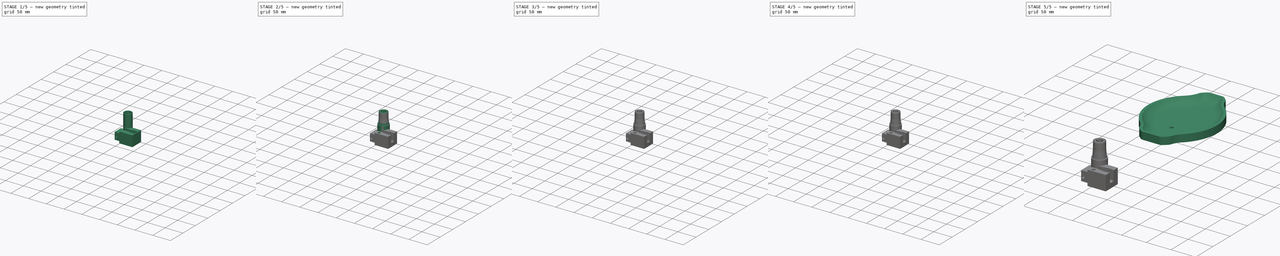
[diagram: build sequence overview — one tinted view per stage of 5, left to right]
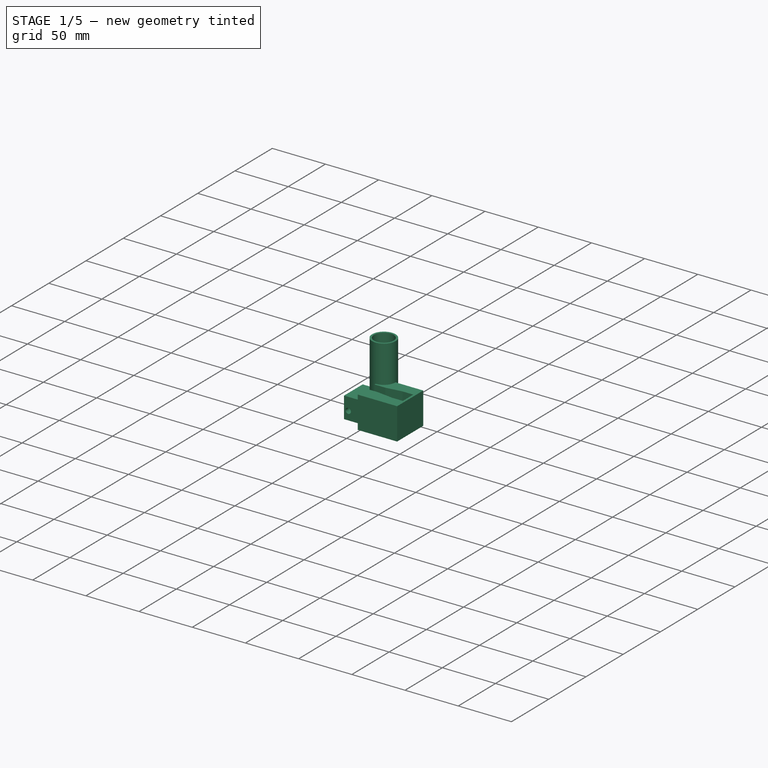
[diagram: stage 1 of 5 — iso view after this stage's code; geometry added in this stage tinted green]
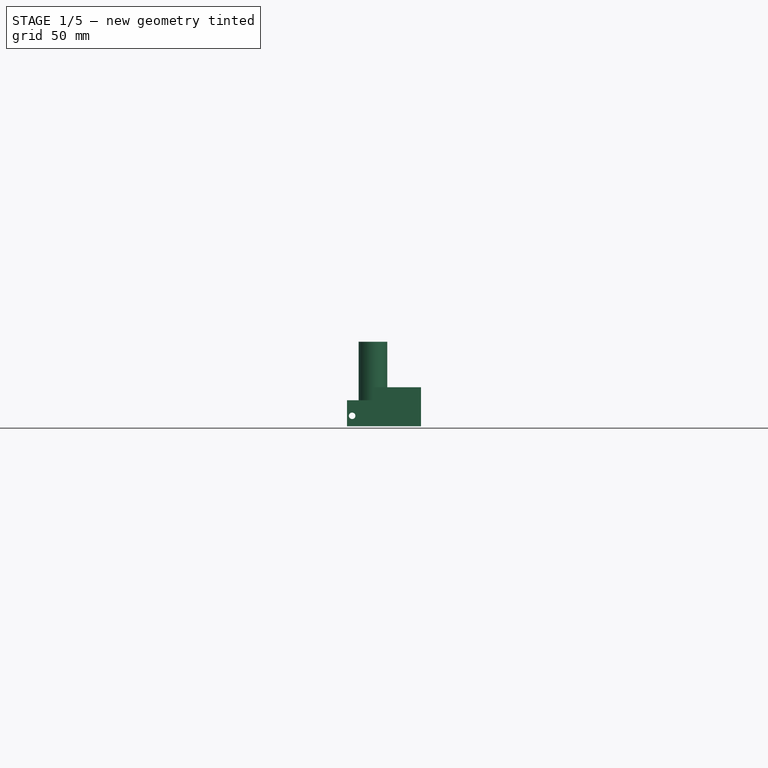
[diagram: stage 1 of 5 — front view after this stage's code; geometry added in this stage tinted green]
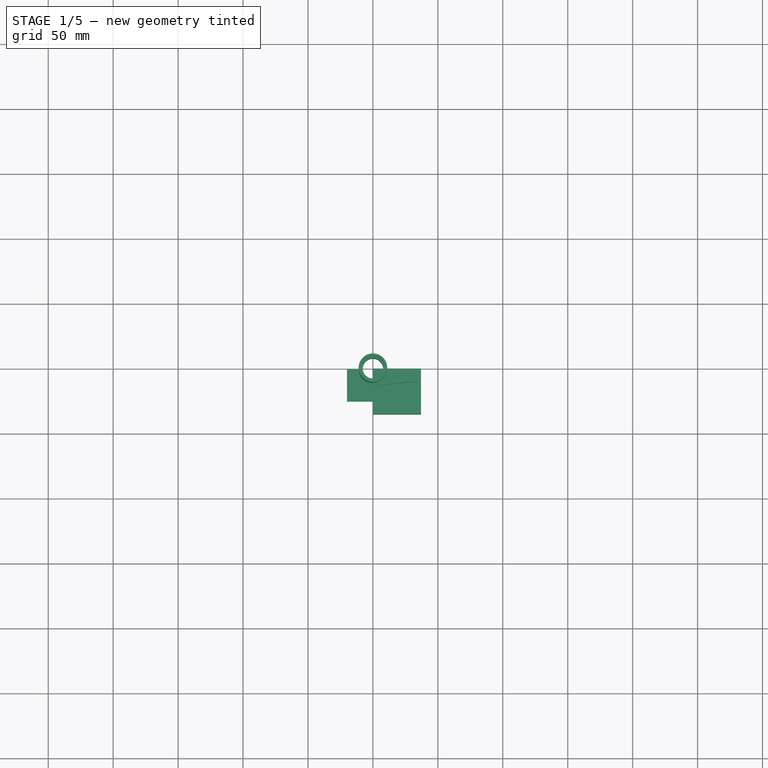
[diagram: stage 1 of 5 — top view after this stage's code; geometry added in this stage tinted green]
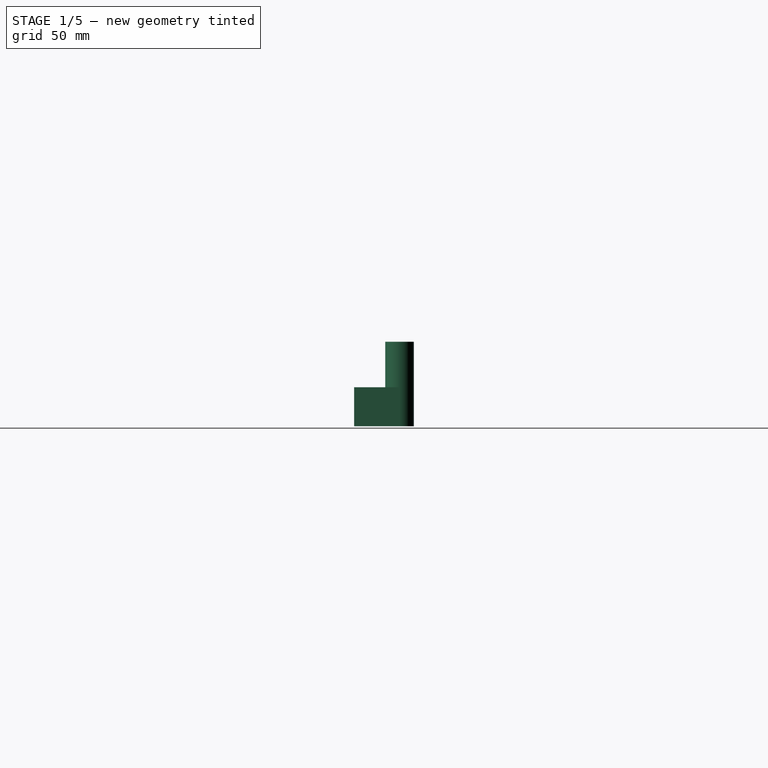
[diagram: stage 1 of 5 — right view after this stage's code; geometry added in this stage tinted green]
FCSTD DOCUMENT  (FreeCAD 0.20R29177 +426 (Git))
Label: Accessoires_maquette3D
License: All rights reserved
LicenseURL: http://en.wikipedia.org/wiki/All_rights_reserved
objects: Sketcher::SketchObject×64, PartDesign::Pocket×38, PartDesign::Pad×26, PartDesign::Body×18, PartDesign::Chamfer×14, PartDesign::Fillet×9, Part::Cut×1
note: 257 computed .brp shape members not serialized (recipe doc carries the construction recipe); baked Part::Feature solids carry a one-line shape summary decoded from their .brp

FEATURE [Sketcher::SketchObject] Sketch
  FullyConstrained = true
  MapMode = 5
  Support = -> [XY_Plane]
  sketch-geometry (1):
    g0: Circle CenterX=0 CenterY=0 CenterZ=0 NormalX=0 NormalY=0 NormalZ=1 AngleXU=0 Radius=9.75
  constraints (2):
    c: Coincident(g0,g-1)
    c: Diameter(g0) = 19.5
FEATURE [PartDesign::Pad] Pad
  Direction = (0,0,1)
  Length = 65
  Length2 = 10
  Profile = -> Sketch
  ReferenceAxis = -> Sketch [N_Axis]
  Type = 0
FEATURE [Sketcher::SketchObject] Sketch001
  FullyConstrained = true
  MapMode = 5
  Placement = pos=(0,0,0) rot=(1,0,0;3.14159rad)
  Support = -> [Pad]
  sketch-geometry (1):
    g0: Circle CenterX=0 CenterY=0 CenterZ=0 NormalX=0 NormalY=0 NormalZ=1 AngleXU=0 Radius=9.25
  constraints (2):
    c: Coincident(g0,g-1)
    c: Diameter(g0) = 18.5
FEATURE [PartDesign::Pocket] Pocket
  BaseFeature = -> Pad
  Direction = (0,0,1)
  Length = 18
  Length2 = 5
  Profile = -> Sketch001
  ReferenceAxis = -> Sketch001 [N_Axis]
  Type = 0
FEATURE [Sketcher::SketchObject] Sketch012
  FullyConstrained = true
  MapMode = 5
  Placement = pos=(0,0,65) rot=(0,0,1;0rad)
  Support = -> [Pocket]
  sketch-geometry (1):
    g0: Circle CenterX=0 CenterY=0 CenterZ=0 NormalX=0 NormalY=0 NormalZ=1 AngleXU=0 Radius=11
  constraints (2):
    c: Coincident(g0,g-1)
    c: Diameter(g0) = 22
FEATURE [PartDesign::Pad] Pad005
  BaseFeature = -> Pocket
  Direction = (0,0,1)
  Length = 30
  Length2 = 10
  Profile = -> Sketch012
  ReferenceAxis = -> Sketch012 [N_Axis]
  Reversed = true
  Type = 0
FEATURE [Sketcher::SketchObject] Sketch013
  FullyConstrained = true
  MapMode = 5
  Placement = pos=(0,0,65) rot=(0,0,1;0rad)
  Support = -> [Pad005]
  sketch-geometry (1):
    g0: Circle CenterX=0 CenterY=0 CenterZ=0 NormalX=0 NormalY=0 NormalZ=1 AngleXU=0 Radius=9.25
  constraints (2):
    c: Coincident(g0,g-1)
    c: Diameter(g0) = 18.5
FEATURE [PartDesign::Pocket] Pocket007
  BaseFeature = -> Pad005
  Direction = (0,0,-1)
  Length = 50
  Length2 = 5
  Profile = -> Sketch013
  ReferenceAxis = -> Sketch013 [N_Axis]
  Type = 0
FEATURE [PartDesign::Fillet] Fillet
  Base = -> Pocket007 [Edge5]
  BaseFeature = -> Pocket007
  Radius = 0.8
  SupportTransform = false
  UseAllEdges = false
FEATURE [Sketcher::SketchObject] Sketch014
  FullyConstrained = false
  MapMode = 5
  Placement = pos=(0,0,0) rot=(1,0,0;3.14159rad)
  Support = -> [Fillet]
  sketch-geometry (4):
    g0: LineSegment StartX=-19.9154 StartY=25 StartZ=0 EndX=20.0846 EndY=25 EndZ=0
    g1: LineSegment StartX=20.0846 StartY=25 StartZ=0 EndX=20.0846 EndY=0 EndZ=0
    g2: LineSegment StartX=20.0846 StartY=0 StartZ=0 EndX=-19.9154 EndY=0 EndZ=0
    g3: LineSegment StartX=-19.9154 StartY=0 StartZ=0 EndX=-19.9154 EndY=25 EndZ=0
  constraints (11):
    c: Coincident(g0,g1)
    c: Coincident(g1,g2)
    c: Coincident(g2,g3)
    c: Coincident(g3,g0)
    c: Horizontal(g0)
    c: Horizontal(g2)
    c: Vertical(g1)
    c: Vertical(g3)
    c: DistanceX(g0,g0) = 40
    c: DistanceY(g1,g1) = 25
    c: PointOnObject(g2,g-1)
FEATURE [PartDesign::Pad] Pad006
  BaseFeature = -> Fillet
  Direction = (0,0,-1)
  Length = 20
  Length2 = 10
  Profile = -> Sketch014
  ReferenceAxis = -> Sketch014 [N_Axis]
  Reversed = true
  Type = 0
FEATURE [Sketcher::SketchObject] Sketch015
  FullyConstrained = false
  MapMode = 5
  Placement = pos=(0,0,0) rot=(1,0,0;3.14159rad)
  Support = -> [Pad006]
  sketch-geometry (4):
    g0: LineSegment StartX=-11.75 StartY=12.7225 StartZ=0 EndX=11.75 EndY=12.7225 EndZ=0
    g1: LineSegment StartX=11.75 StartY=12.7225 StartZ=0 EndX=11.75 EndY=9.72255 EndZ=0
    g2: LineSegment StartX=11.75 StartY=9.72255 StartZ=0 EndX=-11.75 EndY=9.72255 EndZ=0
    g3: LineSegment StartX=-11.75 StartY=9.72255 StartZ=0 EndX=-11.75 EndY=12.7225 EndZ=0
  constraints (10):
    c: Coincident(g0,g1)
    c: Coincident(g1,g2)
    c: Coincident(g2,g3)
    c: Coincident(g3,g0)
    c: Horizontal(g2)
    c: Vertical(g1)
    c: Vertical(g3)
    c: DistanceX(g0,g0) = 23.5
    c: Symmetric(g0,g0,g-2)
    c: DistanceY(g1,g1) = 3
FEATURE [PartDesign::Pocket] Pocket008
  BaseFeature = -> Pad006
  Direction = (0,0,1)
  Length = 15
  Length2 = 5
  Profile = -> Sketch015
  ReferenceAxis = -> Sketch015 [N_Axis]
  Type = 0
FEATURE [Sketcher::SketchObject] Sketch016
  FullyConstrained = false
  MapMode = 5
  Placement = pos=(0,0,0) rot=(1,0,0;3.14159rad)
  Support = -> [Pocket008]
  sketch-geometry (7):
    g0: ArcOfCircle CenterX=0 CenterY=0 CenterZ=0 NormalX=0 NormalY=0 NormalZ=1 AngleXU=0 Radius=9.74232 StartAngle=0 EndAngle=3.15202
    g1: LineSegment StartX=-11.7418 StartY=9.74232 StartZ=0 EndX=-11.7418 EndY=0 EndZ=0
    g2: LineSegment StartX=-11.7418 StartY=0 StartZ=0 EndX=-9.74179 EndY=-0.101547 EndZ=0
    g3: LineSegment StartX=-11.7418 StartY=9.74232 StartZ=0 EndX=7.05564e-08 EndY=9.74232 EndZ=0
    g4: LineSegment StartX=11.7423 StartY=9.74232 StartZ=0 EndX=11.7423 EndY=0 EndZ=0
    g5: LineSegment StartX=11.7423 StartY=0 StartZ=0 EndX=9.74232 EndY=0 EndZ=0
    g6: LineSegment StartX=11.7423 StartY=9.74232 StartZ=0 EndX=7.05564e-08 EndY=9.74232 EndZ=0
  constraints (19):
    c: Coincident(g0,g-1)
    c: PointOnObject(g0,g-1)
    c: PointOnObject(g1,g-1)
    c: Vertical(g1)
    c: Coincident(g2,g1)
    c: Coincident(g2,g0)
    c: Coincident(g3,g1)
    c: PointOnObject(g3,g0)
    c: Horizontal(g3)
    c: Tangent(g3,g0)
    c: PointOnObject(g4,g-1)
    c: Vertical(g4)
    c: Coincident(g5,g4)
    c: Coincident(g5,g0)
    c: Coincident(g6,g4)
    c: Coincident(g6,g3)
    c: Horizontal(g6)
    c: DistanceX(g2,g2) = 2
    c: DistanceX(g5,g5) = 2
FEATURE [PartDesign::Pocket] Pocket009
  BaseFeature = -> Pocket008
  Direction = (0,0,1)
  Length = 15
  Length2 = 5
  Profile = -> Sketch016
  ReferenceAxis = -> Sketch016 [N_Axis]
  Type = 0
FEATURE [Sketcher::SketchObject] Sketch017
  FullyConstrained = true
  MapMode = 5
  Placement = pos=(0,0,0) rot=(1,0,0;3.14159rad)
  Support = -> [Pocket009]
  sketch-geometry (1):
    g0: Circle CenterX=0 CenterY=0 CenterZ=0 NormalX=0 NormalY=0 NormalZ=1 AngleXU=0 Radius=9.25
  constraints (2):
    c: Coincident(g0,g-1)
    c: Diameter(g0) = 18.5
FEATURE [PartDesign::Pocket] Pocket010
  BaseFeature = -> Pocket009
  Direction = (0,0,1)
  Length = 20
  Length2 = 5
  Profile = -> Sketch017
  ReferenceAxis = -> Sketch017 [N_Axis]
  Type = 0
FEATURE [PartDesign::Body] Body004  label="Oxygen_Mixer"
  Group = -> [Sketch018,Pad007,Sketch019,Pocket011,Sketch020,Pocket012,Sketch022,Pad008,Sketch029,Sketch066,Pad023,Pocket039,Sketch067,Pocket040,Sketch069,Sketch071,Pocket043,Sketch072,Pad024,Pocket044,Sketch073,Pocket045,Chamfer020,Fillet008]
  Origin = -> Origin004
  Placement = pos=(101,200,0) rot=(0,0,1;0rad)
  Tip = -> Fillet008
FEATURE [Sketcher::SketchObject] Sketch074
  FullyConstrained = true
  MapMode = 5
  Support = -> [XY_Plane017]
  sketch-geometry (4):
    g0: LineSegment StartX=0 StartY=0 StartZ=0 EndX=35 EndY=0 EndZ=0
    g1: LineSegment StartX=35 StartY=0 StartZ=0 EndX=35 EndY=-35 EndZ=0
    g2: LineSegment StartX=35 StartY=-35 StartZ=0 EndX=0 EndY=-35 EndZ=0
    g3: LineSegment StartX=0 StartY=-35 StartZ=0 EndX=0 EndY=0 EndZ=0
  constraints (11):
    c: Coincident(g0,g1)
    c: Coincident(g1,g2)
    c: Coincident(g2,g3)
    c: Coincident(g3,g0)
    c: Horizontal(g0)
    c: Horizontal(g2)
    c: Vertical(g1)
    c: Vertical(g3)
    c: Coincident(g0,g-1)
    c: DistanceX(g0,g0) = 35
    c: DistanceY(g3,g3) = 35
FEATURE [PartDesign::Pad] Pad025
  Direction = (0,0,1)
  Length = 30
  Length2 = 10
  Profile = -> Sketch074
  ReferenceAxis = -> Sketch074 [N_Axis]
  Type = 0
FEATURE [Sketcher::SketchObject] Sketch075
  FullyConstrained = true
  MapMode = 5
  Placement = pos=(0,0,0) rot=(0.57735,-0.57735,-0.57735;2.0944rad)
  Support = -> [Pad025]
  sketch-geometry (1):
    g0: Circle CenterX=17.5 CenterY=15 CenterZ=0 NormalX=0 NormalY=0 NormalZ=1 AngleXU=0 Radius=5
  constraints (3):
    c: DistanceX(g-1,g0) = 17.5
    c: Diameter(g0) = 10
    c: DistanceY(g-1,g0) = 15
FEATURE [PartDesign::Pocket] Pocket046
  BaseFeature = -> Pad025
  Direction = (1,0,0)
  Length = 10
  Length2 = 5
  Profile = -> Sketch075
  ReferenceAxis = -> Sketch075 [N_Axis]
  Type = 0
FEATURE [Sketcher::SketchObject] Sketch076
  FullyConstrained = true
  MapMode = 5
  Placement = pos=(0,0,30) rot=(0,0,1;0rad)
  Support = -> [Pocket046]
  sketch-geometry (6):
    g0: LineSegment StartX=25 StartY=-10.5 StartZ=0 EndX=35 EndY=-10.5 EndZ=0
    g1: LineSegment StartX=35 StartY=-10.5 StartZ=0 EndX=35 EndY=-24.5 EndZ=0
    g2: LineSegment StartX=35 StartY=-24.5 StartZ=0 EndX=25 EndY=-24.5 EndZ=0
    g3: LineSegment StartX=10 StartY=-12.5 StartZ=0 EndX=25 EndY=-10.5 EndZ=0
    g4: LineSegment StartX=10 StartY=-22.5 StartZ=0 EndX=25 EndY=-24.5 EndZ=0
    g5: LineSegment StartX=10 StartY=-12.5 StartZ=0 EndX=10 EndY=-22.5 EndZ=0
  constraints (18):
    c: Coincident(g0,g1)
    c: Coincident(g1,g2)
    c: Horizontal(g0)
    c: Horizontal(g2)
    c: Vertical(g1)
    c: DistanceY(g2,g0) = 14
    c: DistanceX(g0,g0) = 10
    c: DistanceY(g0,g-1) = 10.5
    c: Coincident(g3,g0)
    c: Coincident(g4,g2)
    c: DistanceX(g-1,g3) = 10
    c: DistanceX(g-1,g4) = 10
    c: DistanceY(g3,g-1) = 12.5
    c: DistanceY(g4,g-1) = 22.5
    c: Coincident(g5,g3)
    c: Coincident(g5,g4)
    c: DistanceX(g3,g3) = 15
    c: DistanceX(g4,g4) = 15
FEATURE [PartDesign::Pocket] Pocket047
  BaseFeature = -> Pocket046
  Direction = (0,0,-1)
  Length = 20
  Length2 = 5
  Profile = -> Sketch076
  ReferenceAxis = -> Sketch076 [N_Axis]
  Type = 0
FEATURE [Sketcher::SketchObject] Sketch077
  FullyConstrained = false
  MapMode = 5
  Placement = pos=(10,0,0) rot=(0.57735,0.57735,0.57735;2.0944rad)
  Support = -> [Pocket047]
  sketch-geometry (4):
    g0: LineSegment StartX=-22.5 StartY=30.0071 StartZ=0 EndX=-12.5 EndY=30.0071 EndZ=0
    g1: LineSegment StartX=-12.5 StartY=30.0071 StartZ=0 EndX=-12.5 EndY=14.9689 EndZ=0
    g2: LineSegment StartX=-12.5 StartY=14.9689 StartZ=0 EndX=-22.5 EndY=14.9689 EndZ=0
    g3: LineSegment StartX=-22.5 StartY=14.9689 StartZ=0 EndX=-22.5 EndY=30.0071 EndZ=0
  constraints (10):
    c: Coincident(g0,g1)
    c: Coincident(g1,g2)
    c: Coincident(g2,g3)
    c: Coincident(g3,g0)
    c: Horizontal(g0)
    c: Horizontal(g2)
    c: Vertical(g1)
    c: Vertical(g3)
    c: DistanceX(g0,g0) = 10
    c: DistanceX(g0,g-1) = 12.5
FEATURE [PartDesign::Pocket] Pocket048
  BaseFeature = -> Pocket047
  Direction = (-1,0,0)
  Length = 10
  Length2 = 5
  Profile = -> Sketch077
  ReferenceAxis = -> Sketch077 [N_Axis]
  Type = 0
FEATURE [Sketcher::SketchObject] Sketch078
  FullyConstrained = true
  MapMode = 5
  Placement = pos=(35,0,0) rot=(0.57735,0.57735,0.57735;2.0944rad)
  Support = -> [Pocket048]
  sketch-geometry (4):
    g0: LineSegment StartX=0 StartY=0 StartZ=0 EndX=-35 EndY=0 EndZ=0
    g1: LineSegment StartX=-35 StartY=0 StartZ=0 EndX=-35 EndY=30 EndZ=0
    g2: LineSegment StartX=-35 StartY=30 StartZ=0 EndX=0 EndY=30 EndZ=0
    g3: LineSegment StartX=0 StartY=30 StartZ=0 EndX=0 EndY=0 EndZ=0
  constraints (11):
    c: Coincident(g0,g1)
    c: Coincident(g1,g2)
    c: Coincident(g2,g3)
    c: Coincident(g3,g0)
    c: Horizontal(g0)
    c: Horizontal(g2)
    c: Vertical(g1)
    c: Vertical(g3)
    c: Coincident(g0,g-1)
    c: DistanceX(g0,g0) = 35
    c: DistanceY(g3,g3) = 30
FEATURE [PartDesign::Pad] Pad026
  BaseFeature = -> Pocket048
  Direction = (1,0,0)
  Length = 2
  Length2 = 10
  Profile = -> Sketch078
  ReferenceAxis = -> Sketch078 [N_Axis]
  Type = 0
FEATURE [PartDesign::Body] Body017  label="Piece_Alim"
  Group = -> [Sketch074,Pad025,Sketch075,Pocket046,Sketch076,Pocket047,Sketch077,Pocket048,Sketch078,Pad026,Sketch079,Pocket049,Sketch080,Pocket050,Sketch081,Pocket051]
  Origin = -> Origin017
  Placement = pos=(102,0,0) rot=(0,0,1;0rad)
  Tip = -> Pocket051
FEATURE [Sketcher::SketchObject] Sketch082
  FullyConstrained = true
  MapMode = 5
  Placement = pos=(0,0,0) rot=(0,0.707107,0.707107;3.14159rad)
  Support = -> [Pocket010]
  sketch-geometry (2):
    g0: Circle CenterX=-16 CenterY=8 CenterZ=0 NormalX=0 NormalY=0 NormalZ=1 AngleXU=0 Radius=2.5
    g1: Circle CenterX=16 CenterY=8 CenterZ=0 NormalX=0 NormalY=0 NormalZ=1 AngleXU=0 Radius=2.5
  constraints (6):
    c: Diameter(g0) = 5
    c: DistanceX(g0,g-1) = 16
    c: DistanceY(g-1,g0) = 8
    c: Diameter(g1) = 5
    c: DistanceX(g-1,g1) = 16
    c: DistanceY(g-1,g1) = 8
FEATURE [PartDesign::Pocket] Pocket052
  BaseFeature = -> Pocket010
  Direction = (0,-1,2e-16)
  Length = 25
  Length2 = 5
  Profile = -> Sketch082
  ReferenceAxis = -> Sketch082 [N_Axis]
  Type = 0
FEATURE [Sketcher::SketchObject] Sketch083
  FullyConstrained = true
  MapMode = 5
  Placement = pos=(0,0,0) rot=(0,0.707107,0.707107;3.14159rad)
  Support = -> [Pocket052]
  sketch-geometry (2):
    g0: Circle CenterX=16 CenterY=8 CenterZ=0 NormalX=0 NormalY=0 NormalZ=1 AngleXU=0 Radius=3.5
    g1: Circle CenterX=-16 CenterY=8 CenterZ=0 NormalX=0 NormalY=0 NormalZ=1 AngleXU=0 Radius=3.5
  constraints (6):
    c: Diameter(g0) = 7
    c: DistanceX(g-1,g0) = 16
    c: DistanceY(g-1,g0) = 8
    c: Diameter(g1) = 7
    c: DistanceX(g1,g-1) = 16
    c: DistanceY(g-1,g1) = 8
FEATURE [PartDesign::Pocket] Pocket053
  BaseFeature = -> Pocket052
  Direction = (0,-1,2e-16)
  Length = 21
  Length2 = 5
  Profile = -> Sketch083
  ReferenceAxis = -> Sketch083 [N_Axis]
  Type = 0
FEATURE [PartDesign::Body] Body  label="Sortie_respirateur"
  Group = -> [Sketch,Pad,Sketch001,Pocket,Sketch012,Pad005,Sketch013,Pocket007,Fillet,Sketch014,Pad006,Sketch015,Pocket008,Sketch016,Pocket009,Sketch017,Pocket010,Sketch082,Pocket052,Sketch083,Pocket053]
  Origin = -> Origin
  Placement = pos=(106,259,0) rot=(0,0,1;0rad)
  Tip = -> Pocket053
FEATURE [Sketcher::SketchObject] Sketch084
  FullyConstrained = true
  MapMode = 5
  Support = -> [XY_Plane018]
  sketch-geometry (1):
    g0: Circle CenterX=0 CenterY=0 CenterZ=0 NormalX=0 NormalY=0 NormalZ=1 AngleXU=0 Radius=11
  constraints (2):
    c: Coincident(g0,g-1)
    c: Diameter(g0) = 22
FEATURE [PartDesign::Pad] Pad027
  Direction = (0,0,1)
  Length = 40
  Length2 = 10
  Profile = -> Sketch084
  ReferenceAxis = -> Sketch084 [N_Axis]
  Type = 0
FEATURE [Sketcher::SketchObject] Sketch086
  FullyConstrained = true
  MapMode = 5
  Placement = pos=(0,0,0) rot=(1,0,0;3.14159rad)
  sketch-geometry (1):
    g0: Circle CenterX=0 CenterY=0 CenterZ=0 NormalX=0 NormalY=0 NormalZ=1 AngleXU=0 Radius=7.875
  constraints (2):
    c: Coincident(g0,g-1)
    c: Diameter(g0) = 15.75
FEATURE [PartDesign::Pocket] Pocket055
  BaseFeature = -> Pad027
  Direction = (0,0,1)
  Length = 40
  Length2 = 5
  Profile = -> Sketch086
  ReferenceAxis = -> Sketch086 [N_Axis]
  Type = 0
FEATURE [PartDesign::Body] Body018  label="Adaptateur_Poumon"
  Group = -> [Sketch084,Pad027,Sketch086,Pocket055]
  Origin = -> Origin018
  Placement = pos=(0,-150,0) rot=(0,0,1;0rad)
  Tip = -> Pocket055
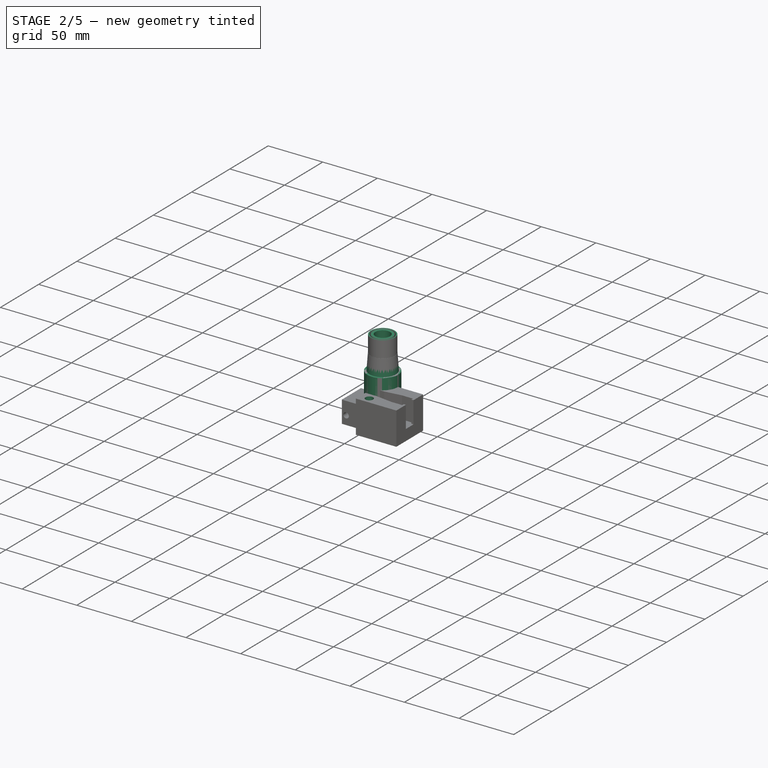
[diagram: stage 2 of 5 — iso view after this stage's code; geometry added in this stage tinted green]
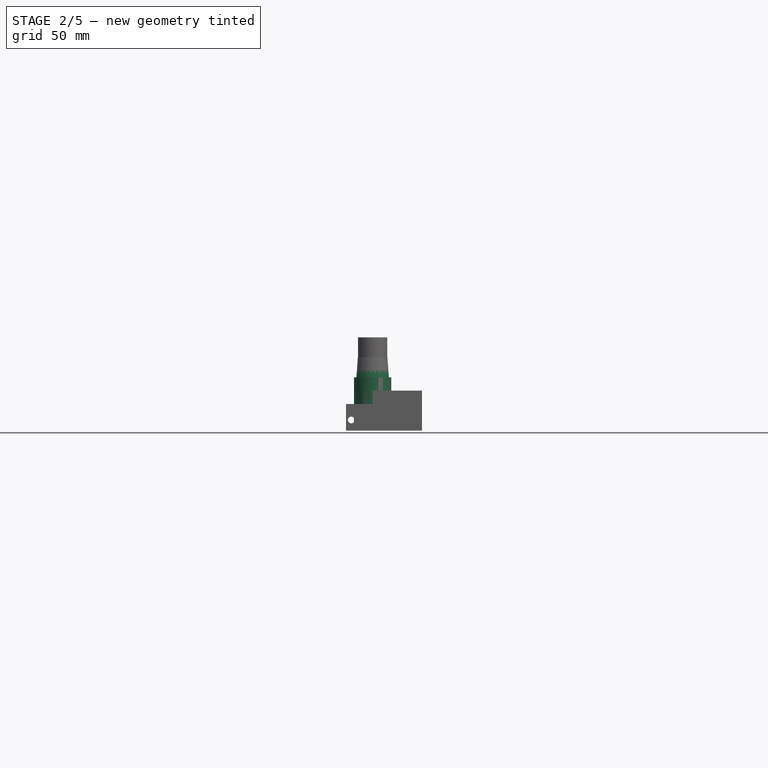
[diagram: stage 2 of 5 — front view after this stage's code; geometry added in this stage tinted green]
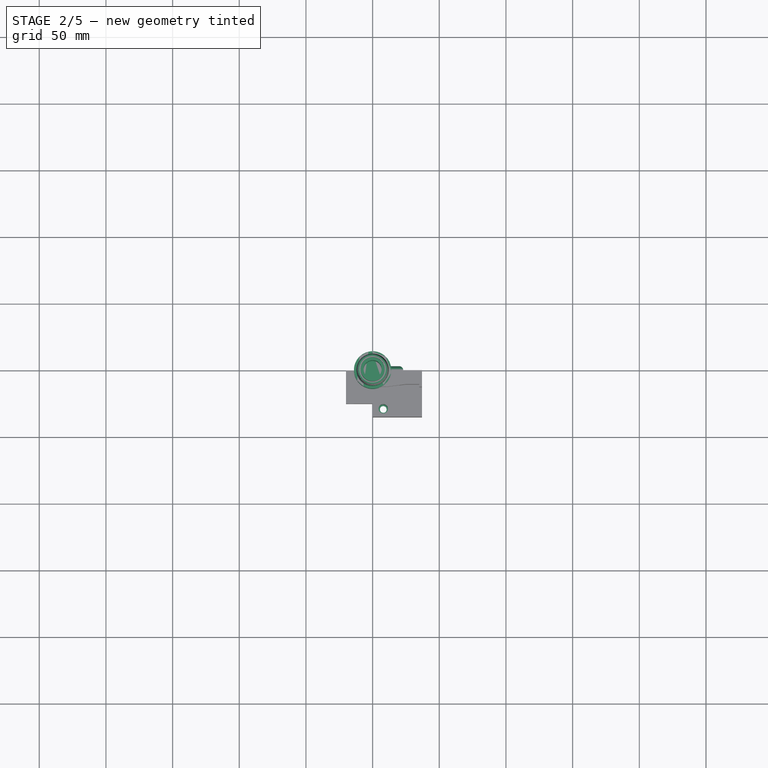
[diagram: stage 2 of 5 — top view after this stage's code; geometry added in this stage tinted green]
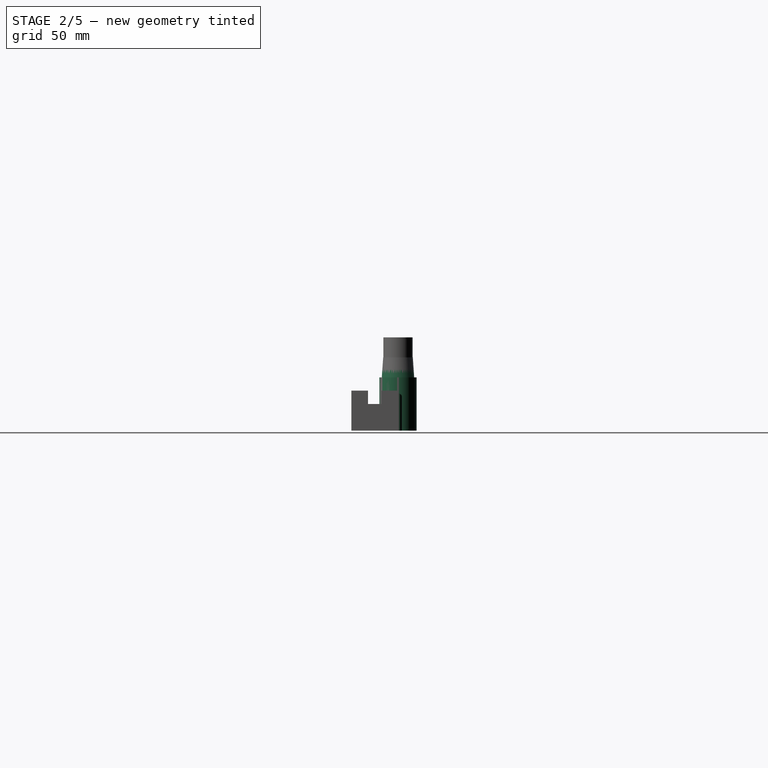
[diagram: stage 2 of 5 — right view after this stage's code; geometry added in this stage tinted green]
FEATURE [Sketcher::SketchObject] Sketch018
  FullyConstrained = true
  MapMode = 5
  Support = -> [XY_Plane004]
  sketch-geometry (1):
    g0: Circle CenterX=0 CenterY=0 CenterZ=0 NormalX=0 NormalY=0 NormalZ=1 AngleXU=0 Radius=13
  constraints (2):
    c: Coincident(g0,g-1)
    c: Diameter(g0) = 26
FEATURE [PartDesign::Pad] Pad007
  Direction = (0,0,1)
  Length = 70
  Length2 = 10
  Profile = -> Sketch018
  ReferenceAxis = -> Sketch018 [N_Axis]
  Type = 0
FEATURE [Sketcher::SketchObject] Sketch019
  FullyConstrained = true
  MapMode = 5
  Placement = pos=(0,0,0) rot=(1,0,0;3.14159rad)
  Support = -> [Pad007]
  sketch-geometry (2):
    g0: Circle CenterX=0 CenterY=0 CenterZ=0 NormalX=0 NormalY=0 NormalZ=1 AngleXU=0 Radius=11.5
    g1: Circle CenterX=0 CenterY=0 CenterZ=0 NormalX=0 NormalY=0 NormalZ=1 AngleXU=0 Radius=7.5
  constraints (4):
    c: Coincident(g0,g-1)
    c: Diameter(g0) = 23
    c: Coincident(g1,g0)
    c: Diameter(g1) = 15
FEATURE [PartDesign::Pocket] Pocket011
  BaseFeature = -> Pad007
  Direction = (0,0,1)
  Length = 20
  Length2 = 5
  Profile = -> Sketch019
  ReferenceAxis = -> Sketch019 [N_Axis]
  Type = 0
FEATURE [Sketcher::SketchObject] Sketch020
  FullyConstrained = true
  MapMode = 5
  Placement = pos=(0,0,70) rot=(0,0,1;0rad)
  Support = -> [Pocket011]
  sketch-geometry (2):
    g0: Circle CenterX=0 CenterY=0 CenterZ=0 NormalX=0 NormalY=0 NormalZ=1 AngleXU=0 Radius=10
    g1: Circle CenterX=0 CenterY=0 CenterZ=0 NormalX=0 NormalY=0 NormalZ=1 AngleXU=0 Radius=9
  constraints (4):
    c: Coincident(g0,g-1)
    c: Diameter(g0) = 20
    c: Coincident(g1,g0)
    c: Diameter(g1) = 18
FEATURE [PartDesign::Pocket] Pocket012
  BaseFeature = -> Pocket011
  Direction = (0,0,-1)
  Length = 20
  Length2 = 5
  Profile = -> Sketch020
  ReferenceAxis = -> Sketch020 [N_Axis]
  Type = 0
FEATURE [Sketcher::SketchObject] Sketch022
  FullyConstrained = true
  MapMode = 5
  Placement = pos=(0,0,0) rot=(0.57735,0.57735,0.57735;2.0944rad)
  Support = -> [YZ_Plane004]
  sketch-geometry (1):
    g0: Circle CenterX=0 CenterY=25 CenterZ=0 NormalX=0 NormalY=0 NormalZ=1 AngleXU=0 Radius=3
  constraints (3):
    c: PointOnObject(g0,g-2)
    c: Diameter(g0) = 6
    c: DistanceY(g0,g-1) = -25
FEATURE [PartDesign::Pad] Pad008
  BaseFeature = -> Pocket012
  Direction = (1,-2e-16,3e-16)
  Length = 23
  Length2 = 10
  Profile = -> Sketch022
  ReferenceAxis = -> Sketch022 [N_Axis]
  Type = 0
FEATURE [PartDesign::Body] Body015  label="Test_section_1mm"
  Group = -> [Sketch060,Pad021,Sketch061,Pocket034,Chamfer018]
  Origin = -> Origin015
  Placement = pos=(24,28,0) rot=(0,0,1;0rad)
  Tip = -> Chamfer018
FEATURE [Sketcher::SketchObject] Sketch063
  FullyConstrained = true
  MapMode = 5
  Support = -> [XY_Plane016]
  sketch-geometry (1):
    g0: Circle CenterX=0 CenterY=0 CenterZ=0 NormalX=0 NormalY=0 NormalZ=1 AngleXU=0 Radius=14
  constraints (2):
    c: Coincident(g0,g-1)
    c: Diameter(g0) = 28
FEATURE [PartDesign::Pad] Pad022
  Direction = (0,0,1)
  Length = 40
  Length2 = 10
  Profile = -> Sketch063
  ReferenceAxis = -> Sketch063 [N_Axis]
  Type = 0
FEATURE [PartDesign::Body] Body016  label="Adaptateur_blower_debitmetre"
  Group = -> [Sketch063,Pad022,Sketch064,Pocket037,Sketch065,Pocket038,Chamfer019]
  Origin = -> Origin016
  Placement = pos=(98,152,0) rot=(0,0,1;0rad)
  Tip = -> Chamfer019
FEATURE [Sketcher::SketchObject] Sketch066
  FullyConstrained = true
  MapMode = 5
  Placement = pos=(0,0,0) rot=(1,0,0;3.14159rad)
  sketch-geometry (1):
    g0: Circle CenterX=20 CenterY=0 CenterZ=0 NormalX=0 NormalY=0 NormalZ=1 AngleXU=0 Radius=3
  constraints (3):
    c: PointOnObject(g0,g-1)
    c: Diameter(g0) = 6
    c: DistanceX(g-1,g0) = 20
FEATURE [PartDesign::Pad] Pad023
  BaseFeature = -> Pad008
  Direction = (0,0,-1)
  Length = 25
  Length2 = 10
  Profile = -> Sketch066
  ReferenceAxis = -> Sketch066 [N_Axis]
  Reversed = true
  Type = 0
FEATURE [PartDesign::Pocket] Pocket039
  BaseFeature = -> Pad023
  Direction = (-1,0,0)
  Length = 23
  Length2 = 5
  Profile = -> Sketch029
  ReferenceAxis = -> Sketch029 [N_Axis]
  Type = 0
FEATURE [Sketcher::SketchObject] Sketch067
  FullyConstrained = true
  MapMode = 5
  Placement = pos=(0,0,0) rot=(1,0,0;3.14159rad)
  Support = -> [Pocket039]
  sketch-geometry (1):
    g0: Circle CenterX=20 CenterY=0 CenterZ=0 NormalX=0 NormalY=0 NormalZ=1 AngleXU=0 Radius=2
  constraints (3):
    c: PointOnObject(g0,g-1)
    c: Diameter(g0) = 4
    c: DistanceX(g-1,g0) = 20
FEATURE [PartDesign::Pocket] Pocket040
  BaseFeature = -> Pocket039
  Direction = (0,0,1)
  Length = 25
  Length2 = 5
  Profile = -> Sketch067
  ReferenceAxis = -> Sketch067 [N_Axis]
  Type = 0
FEATURE [Sketcher::SketchObject] Sketch069
  FullyConstrained = false
  MapMode = 5
  Placement = pos=(0,0,0) rot=(1,0,0;3.14159rad)
  sketch-geometry (5):
    g0: GeomPoint X=20 Y=0 Z=0
    g1: ArcOfCircle CenterX=20 CenterY=0 CenterZ=0 NormalX=0 NormalY=0 NormalZ=1 AngleXU=0 Radius=2.97441 StartAngle=4.71265 EndAngle=7.86175
    g2: LineSegment StartX=19.9769 StartY=2.97432 StartZ=0 EndX=23.1551 EndY=3.47224 EndZ=0
    g3: LineSegment StartX=20.0008 StartY=-2.97441 StartZ=0 EndX=23.1551 EndY=-3.46752 EndZ=0
    g4: LineSegment StartX=23.1551 StartY=-3.46752 StartZ=0 EndX=23.1551 EndY=3.47224 EndZ=0
  constraints (8):
    c: PointOnObject(g0,g-1)
    c: DistanceX(g-1,g0) = 20
    c: Coincident(g1,g0)
    c: Coincident(g2,g1)
    c: Coincident(g3,g1)
    c: Coincident(g4,g3)
    c: Coincident(g4,g2)
    c: Vertical(g4)
FEATURE [Sketcher::SketchObject] Sketch071
  FullyConstrained = true
  MapMode = 5
  Placement = pos=(0,0,70) rot=(0,0,1;0rad)
  sketch-geometry (2):
    g0: Circle CenterX=0 CenterY=0 CenterZ=0 NormalX=0 NormalY=0 NormalZ=1 AngleXU=0 Radius=13
    g1: Circle CenterX=0 CenterY=0 CenterZ=0 NormalX=0 NormalY=0 NormalZ=1 AngleXU=0 Radius=11
  constraints (4):
    c: Coincident(g0,g-1)
    c: Coincident(g1,g0)
    c: Diameter(g1) = 22
    c: Diameter(g0) = 26
FEATURE [PartDesign::Pocket] Pocket043
  BaseFeature = -> Pocket040
  Direction = (0,0,-1)
  Length = 15
  Length2 = 5
  Profile = -> Sketch071
  ReferenceAxis = -> Sketch071 [N_Axis]
  Type = 0
FEATURE [Sketcher::SketchObject] Sketch072
  FullyConstrained = true
  MapMode = 5
  Placement = pos=(23,-5.1e-15,5.1e-15) rot=(0.57735,0.57735,0.57735;2.0944rad)
  Support = -> [Pocket040]
  sketch-geometry (1):
    g0: Circle CenterX=0 CenterY=25 CenterZ=0 NormalX=0 NormalY=0 NormalZ=1 AngleXU=0 Radius=2
  constraints (3):
    c: PointOnObject(g0,g-2)
    c: DistanceY(g-1,g0) = 25
    c: Diameter(g0) = 4
FEATURE [PartDesign::Pad] Pad024
  BaseFeature = -> Pocket043
  Direction = (1,-2e-16,2e-16)
  Length = 1.5
  Length2 = 10
  Profile = -> Sketch072
  ReferenceAxis = -> Sketch072 [N_Axis]
  Reversed = true
  Type = 0
FEATURE [PartDesign::Pocket] Pocket044
  BaseFeature = -> Pad024
  Direction = (0,0,1)
  Length = 29
  Length2 = 5
  Profile = -> Sketch069
  ReferenceAxis = -> Sketch069 [N_Axis]
  Type = 0
FEATURE [Sketcher::SketchObject] Sketch073
  FullyConstrained = true
  MapMode = 5
  Placement = pos=(0,0,0) rot=(1,0,0;3.14159rad)
  Support = -> [Pocket044]
  sketch-geometry (1):
    g0: Circle CenterX=0 CenterY=0 CenterZ=0 NormalX=0 NormalY=0 NormalZ=1 AngleXU=0 Radius=6.75
  constraints (2):
    c: Coincident(g0,g-1)
    c: Diameter(g0) = 13.5
FEATURE [PartDesign::Pocket] Pocket045
  BaseFeature = -> Pocket044
  Direction = (0,0,1)
  Length = 70
  Length2 = 5
  Profile = -> Sketch073
  ReferenceAxis = -> Sketch073 [N_Axis]
  Type = 0
FEATURE [PartDesign::Chamfer] Chamfer020
  Angle = 45
  Base = -> Pocket045 [Edge4]
  BaseFeature = -> Pocket045
  ChamferType = 1
  FlipDirection = false
  Size = 27
  Size2 = 1.9
  SupportTransform = false
  UseAllEdges = false
FEATURE [PartDesign::Fillet] Fillet008
  Base = -> Chamfer020 [Edge47]
  BaseFeature = -> Chamfer020
  Radius = 0.3
  SupportTransform = false
  UseAllEdges = false
FEATURE [Sketcher::SketchObject] Sketch079
  FullyConstrained = false
  MapMode = 5
  Placement = pos=(37,0,0) rot=(0.57735,0.57735,0.57735;2.0944rad)
  Support = -> [Pad026]
  sketch-geometry (4):
    g0: LineSegment StartX=-22.5 StartY=31.1239 StartZ=0 EndX=-12.5 EndY=31.1239 EndZ=0
    g1: LineSegment StartX=-12.5 StartY=31.1239 StartZ=0 EndX=-12.5 EndY=10 EndZ=0
    g2: LineSegment StartX=-12.5 StartY=10 StartZ=0 EndX=-22.5 EndY=10 EndZ=0
    g3: LineSegment StartX=-22.5 StartY=10 StartZ=0 EndX=-22.5 EndY=31.1239 EndZ=0
  constraints (11):
    c: Coincident(g0,g1)
    c: Coincident(g1,g2)
    c: Coincident(g2,g3)
    c: Coincident(g3,g0)
    c: Horizontal(g0)
    c: Horizontal(g2)
    c: Vertical(g1)
    c: Vertical(g3)
    c: DistanceX(g0,g0) = 10
    c: DistanceX(g0,g-1) = 12.5
    c: DistanceY(g-1,g1) = 10
FEATURE [PartDesign::Pocket] Pocket049
  BaseFeature = -> Pad026
  Direction = (-1,0,0)
  Length = 5
  Length2 = 5
  Profile = -> Sketch079
  ReferenceAxis = -> Sketch079 [N_Axis]
  Type = 0
FEATURE [Sketcher::SketchObject] Sketch080
  FullyConstrained = true
  MapMode = 5
  Placement = pos=(0,0,30) rot=(0,0,1;0rad)
  Support = -> [Pocket049]
  sketch-geometry (2):
    g0: Circle CenterX=8 CenterY=-6 CenterZ=0 NormalX=0 NormalY=0 NormalZ=1 AngleXU=0 Radius=2.5
    g1: Circle CenterX=8 CenterY=-29 CenterZ=0 NormalX=0 NormalY=0 NormalZ=1 AngleXU=0 Radius=2.5
  constraints (6):
    c: Diameter(g0) = 5
    c: DistanceY(g0,g-1) = 6
    c: DistanceX(g-1,g0) = 8
    c: Diameter(g1) = 5
    c: DistanceX(g-1,g1) = 8
    c: DistanceY(g1,g-1) = 29
FEATURE [PartDesign::Pocket] Pocket050
  BaseFeature = -> Pocket049
  Direction = (0,0,-1)
  Length = 30
  Length2 = 5
  Profile = -> Sketch080
  ReferenceAxis = -> Sketch080 [N_Axis]
  Type = 0
FEATURE [Sketcher::SketchObject] Sketch081
  FullyConstrained = true
  MapMode = 5
  Placement = pos=(0,0,30) rot=(0,0,1;0rad)
  Support = -> [Pocket050]
  sketch-geometry (2):
    g0: Circle CenterX=8 CenterY=-6 CenterZ=0 NormalX=0 NormalY=0 NormalZ=1 AngleXU=0 Radius=3.5
    g1: Circle CenterX=8 CenterY=-29 CenterZ=0 NormalX=0 NormalY=0 NormalZ=1 AngleXU=0 Radius=3.5
  constraints (6):
    c: DistanceX(g-1,g0) = 8
    c: DistanceY(g0,g-1) = 6
    c: Diameter(g0) = 7
    c: Diameter(g1) = 7
    c: DistanceY(g1,g-1) = 29
    c: DistanceX(g-1,g1) = 8
FEATURE [PartDesign::Pocket] Pocket051
  BaseFeature = -> Pocket050
  Direction = (0,0,-1)
  Length = 28
  Length2 = 5
  Profile = -> Sketch081
  ReferenceAxis = -> Sketch081 [N_Axis]
  Type = 0
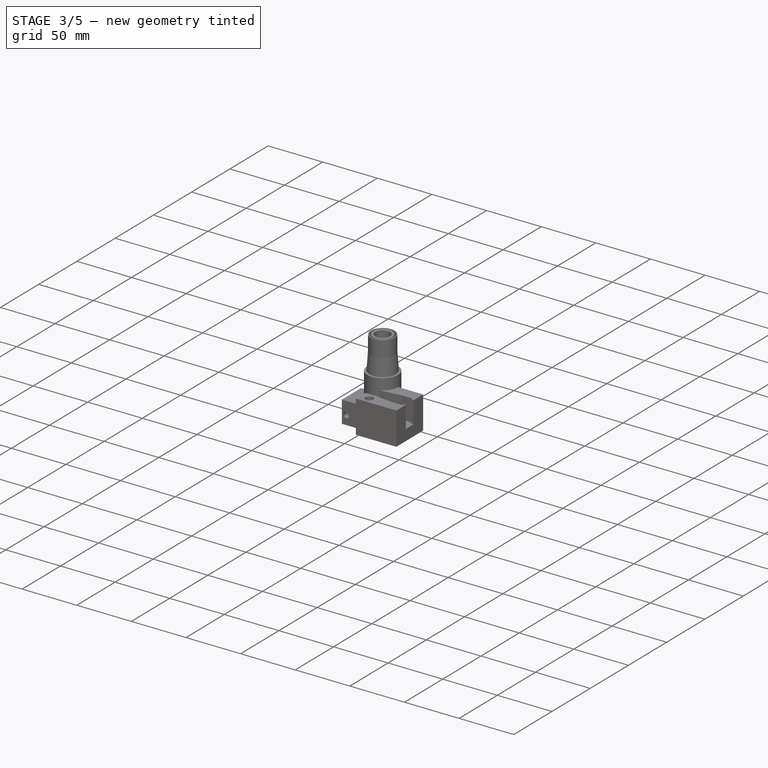
[diagram: stage 3 of 5 — iso view after this stage's code; geometry added in this stage tinted green]
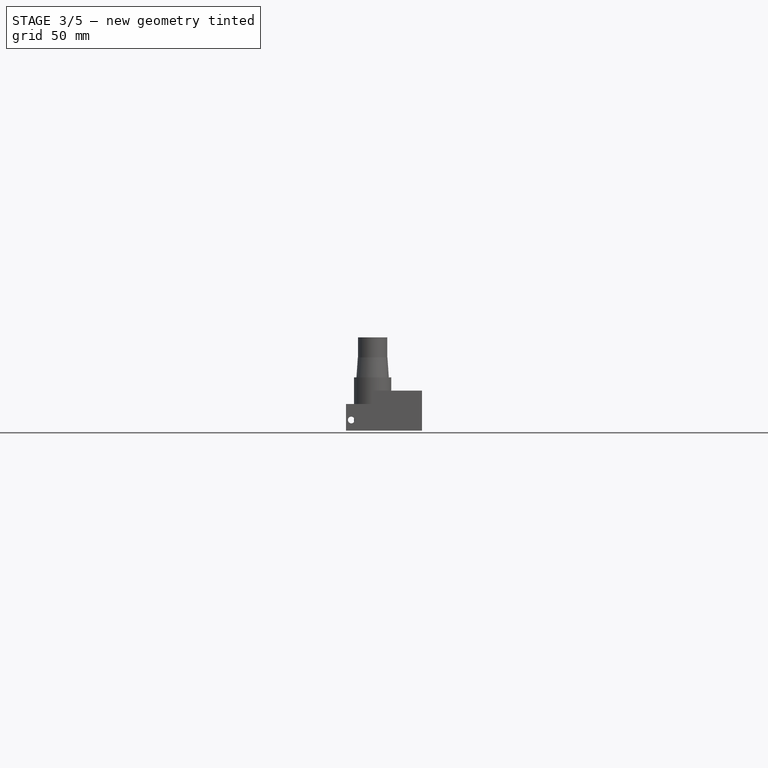
[diagram: stage 3 of 5 — front view after this stage's code; geometry added in this stage tinted green]
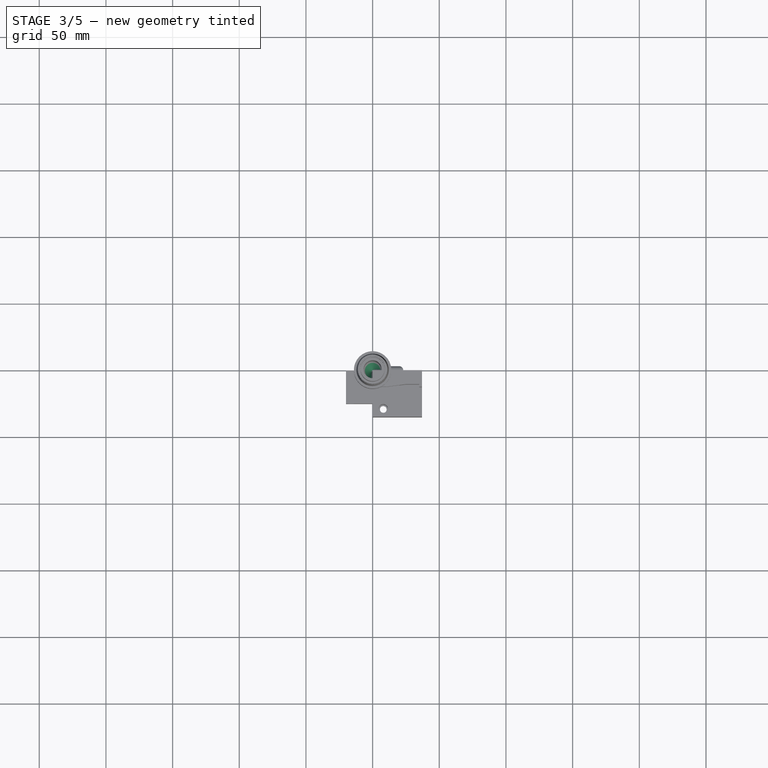
[diagram: stage 3 of 5 — top view after this stage's code; geometry added in this stage tinted green]
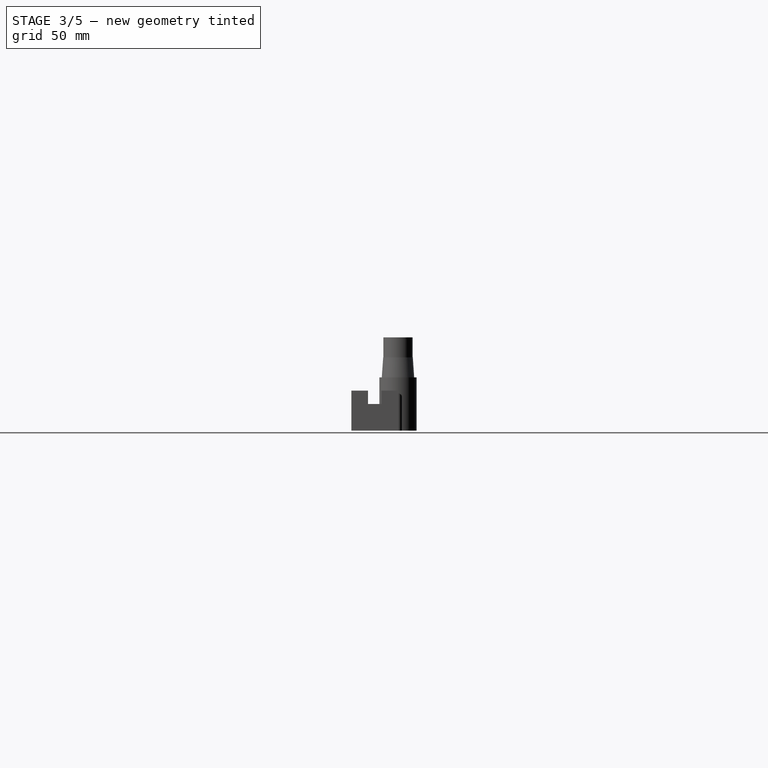
[diagram: stage 3 of 5 — right view after this stage's code; geometry added in this stage tinted green]
FEATURE [PartDesign::Body] Body009  label="Test_section_10mm"
  Group = -> [Sketch048,Pad015,Sketch049,Pocket028,Chamfer008]
  Origin = -> Origin009
  Placement = pos=(0,-27,0) rot=(0,0,1;0rad)
  Tip = -> Chamfer008
FEATURE [Sketcher::SketchObject] Sketch050
  FullyConstrained = true
  MapMode = 5
  Support = -> [XY_Plane010]
  sketch-geometry (1):
    g0: Circle CenterX=0 CenterY=0 CenterZ=0 NormalX=0 NormalY=0 NormalZ=1 AngleXU=0 Radius=11
  constraints (2):
    c: Coincident(g0,g-1)
    c: Diameter(g0) = 22
FEATURE [PartDesign::Pad] Pad016
  Direction = (0,0,1)
  Length = 20
  Length2 = 10
  Profile = -> Sketch050
  ReferenceAxis = -> Sketch050 [N_Axis]
  Type = 0
FEATURE [Sketcher::SketchObject] Sketch051
  FullyConstrained = true
  MapMode = 5
  Placement = pos=(0,0,0) rot=(1,0,0;3.14159rad)
  Support = -> [Pad016]
  sketch-geometry (1):
    g0: Circle CenterX=0 CenterY=0 CenterZ=0 NormalX=0 NormalY=0 NormalZ=1 AngleXU=0 Radius=6
  constraints (2):
    c: Coincident(g0,g-1)
    c: Diameter(g0) = 12
FEATURE [PartDesign::Pocket] Pocket029
  BaseFeature = -> Pad016
  Direction = (0,0,1)
  Length = 20
  Length2 = 5
  Profile = -> Sketch051
  ReferenceAxis = -> Sketch051 [N_Axis]
  Type = 0
FEATURE [Sketcher::SketchObject] Sketch052
  FullyConstrained = true
  MapMode = 5
  Support = -> [XY_Plane011]
  sketch-geometry (1):
    g0: Circle CenterX=0 CenterY=0 CenterZ=0 NormalX=0 NormalY=0 NormalZ=1 AngleXU=0 Radius=11
  constraints (2):
    c: Coincident(g0,g-1)
    c: Diameter(g0) = 22
FEATURE [PartDesign::Pad] Pad017
  Direction = (0,0,1)
  Length = 20
  Length2 = 10
  Profile = -> Sketch052
  ReferenceAxis = -> Sketch052 [N_Axis]
  Type = 0
FEATURE [Sketcher::SketchObject] Sketch053
  FullyConstrained = true
  MapMode = 5
  Placement = pos=(0,0,0) rot=(1,0,0;3.14159rad)
  Support = -> [Pad017]
  sketch-geometry (1):
    g0: Circle CenterX=0 CenterY=0 CenterZ=0 NormalX=0 NormalY=0 NormalZ=1 AngleXU=0 Radius=7
  constraints (2):
    c: Coincident(g0,g-1)
    c: Diameter(g0) = 14
FEATURE [PartDesign::Pocket] Pocket030
  BaseFeature = -> Pad017
  Direction = (0,0,1)
  Length = 20
  Length2 = 5
  Profile = -> Sketch053
  ReferenceAxis = -> Sketch053 [N_Axis]
  Type = 0
FEATURE [Sketcher::SketchObject] Sketch054
  FullyConstrained = true
  MapMode = 5
  Support = -> [XY_Plane012]
  sketch-geometry (1):
    g0: Circle CenterX=0 CenterY=0 CenterZ=0 NormalX=0 NormalY=0 NormalZ=1 AngleXU=0 Radius=11
  constraints (2):
    c: Coincident(g0,g-1)
    c: Diameter(g0) = 22
FEATURE [PartDesign::Pad] Pad018
  Direction = (0,0,1)
  Length = 20
  Length2 = 10
  Profile = -> Sketch054
  ReferenceAxis = -> Sketch054 [N_Axis]
  Type = 0
FEATURE [Sketcher::SketchObject] Sketch055
  FullyConstrained = true
  MapMode = 5
  Placement = pos=(0,0,0) rot=(1,0,0;3.14159rad)
  Support = -> [Pad018]
  sketch-geometry (1):
    g0: Circle CenterX=0 CenterY=0 CenterZ=0 NormalX=0 NormalY=0 NormalZ=1 AngleXU=0 Radius=8
  constraints (2):
    c: Coincident(g0,g-1)
    c: Diameter(g0) = 16
FEATURE [PartDesign::Pocket] Pocket031
  BaseFeature = -> Pad018
  Direction = (0,0,1)
  Length = 20
  Length2 = 5
  Profile = -> Sketch055
  ReferenceAxis = -> Sketch055 [N_Axis]
  Type = 0
FEATURE [Sketcher::SketchObject] Sketch056
  FullyConstrained = true
  MapMode = 5
  Support = -> [XY_Plane013]
  sketch-geometry (1):
    g0: Circle CenterX=0 CenterY=0 CenterZ=0 NormalX=0 NormalY=0 NormalZ=1 AngleXU=0 Radius=11
  constraints (2):
    c: Coincident(g0,g-1)
    c: Diameter(g0) = 22
FEATURE [PartDesign::Pad] Pad019
  Direction = (0,0,1)
  Length = 20
  Length2 = 10
  Profile = -> Sketch056
  ReferenceAxis = -> Sketch056 [N_Axis]
  Type = 0
FEATURE [Sketcher::SketchObject] Sketch057
  FullyConstrained = true
  MapMode = 5
  Placement = pos=(0,0,0) rot=(1,0,0;3.14159rad)
  Support = -> [Pad019]
  sketch-geometry (1):
    g0: Circle CenterX=0 CenterY=0 CenterZ=0 NormalX=0 NormalY=0 NormalZ=1 AngleXU=0 Radius=9
  constraints (2):
    c: Coincident(g0,g-1)
    c: Diameter(g0) = 18
FEATURE [PartDesign::Pocket] Pocket032
  BaseFeature = -> Pad019
  Direction = (0,0,1)
  Length = 20
  Length2 = 5
  Profile = -> Sketch057
  ReferenceAxis = -> Sketch057 [N_Axis]
  Type = 0
FEATURE [PartDesign::Body] Body014  label="Test_section_20mm"
  Group = -> [Sketch058,Pad020,Sketch059,Pocket033]
  Origin = -> Origin014
  Placement = pos=(-2,-55,0) rot=(0,0,1;0rad)
  Tip = -> Pocket033
FEATURE [PartDesign::Chamfer] Chamfer014
  Angle = 45
  Base = -> Pocket029 [Edge5]
  BaseFeature = -> Pocket029
  ChamferType = 1
  FlipDirection = false
  Size = 4
  Size2 = 19
  SupportTransform = false
  UseAllEdges = false
FEATURE [PartDesign::Body] Body010  label="Test_section_12mm"
  Group = -> [Sketch050,Pad016,Sketch051,Pocket029,Chamfer014]
  Origin = -> Origin010
  Placement = pos=(24,-27,0) rot=(0,0,1;0rad)
  Tip = -> Chamfer014
FEATURE [PartDesign::Chamfer] Chamfer015
  Angle = 45
  Base = -> Pocket030 [Edge5]
  BaseFeature = -> Pocket030
  ChamferType = 1
  FlipDirection = false
  Size = 3
  Size2 = 19
  SupportTransform = false
  UseAllEdges = false
FEATURE [PartDesign::Body] Body011  label="Test_section_14mm"
  Group = -> [Sketch052,Pad017,Sketch053,Pocket030,Chamfer015]
  Origin = -> Origin011
  Placement = pos=(-29,-27,0) rot=(0,0,1;0rad)
  Tip = -> Chamfer015
FEATURE [PartDesign::Chamfer] Chamfer016
  Angle = 45
  Base = -> Pocket031 [Edge5]
  BaseFeature = -> Pocket031
  ChamferType = 1
  FlipDirection = false
  Size = 2
  Size2 = 19
  SupportTransform = false
  UseAllEdges = false
FEATURE [PartDesign::Body] Body012  label="Test_section_16mm"
  Group = -> [Sketch054,Pad018,Sketch055,Pocket031,Chamfer016]
  Origin = -> Origin012
  Placement = pos=(24,-56,0) rot=(0,0,1;0rad)
  Tip = -> Chamfer016
FEATURE [PartDesign::Chamfer] Chamfer017
  Angle = 45
  Base = -> Pocket032 [Edge5]
  BaseFeature = -> Pocket032
  ChamferType = 1
  FlipDirection = false
  Size = 1
  Size2 = 19
  SupportTransform = false
  UseAllEdges = false
FEATURE [PartDesign::Body] Body013  label="Test_section_18mm"
  Group = -> [Sketch056,Pad019,Sketch057,Pocket032,Chamfer017]
  Origin = -> Origin013
  Placement = pos=(-31,-54,0) rot=(0,0,1;0rad)
  Tip = -> Chamfer017
FEATURE [Sketcher::SketchObject] Sketch060
  FullyConstrained = true
  MapMode = 5
  Support = -> [XY_Plane015]
  sketch-geometry (1):
    g0: Circle CenterX=0 CenterY=0 CenterZ=0 NormalX=0 NormalY=0 NormalZ=1 AngleXU=0 Radius=11
  constraints (2):
    c: Coincident(g0,g-1)
    c: Diameter(g0) = 22
FEATURE [PartDesign::Pad] Pad021
  Direction = (0,0,1)
  Length = 20
  Length2 = 10
  Profile = -> Sketch060
  ReferenceAxis = -> Sketch060 [N_Axis]
  Type = 0
FEATURE [Sketcher::SketchObject] Sketch061
  FullyConstrained = true
  MapMode = 5
  Placement = pos=(0,0,0) rot=(1,0,0;3.14159rad)
  Support = -> [Pad021]
  sketch-geometry (1):
    g0: Circle CenterX=0 CenterY=0 CenterZ=0 NormalX=0 NormalY=0 NormalZ=1 AngleXU=0 Radius=0.5
  constraints (2):
    c: Coincident(g0,g-1)
    c: Diameter(g0) = 1
FEATURE [PartDesign::Pocket] Pocket034
  BaseFeature = -> Pad021
  Direction = (0,0,1)
  Length = 20
  Length2 = 5
  Profile = -> Sketch061
  ReferenceAxis = -> Sketch061 [N_Axis]
  Type = 0
FEATURE [PartDesign::Chamfer] Chamfer018
  Angle = 45
  Base = -> Pocket034 [Edge5]
  BaseFeature = -> Pocket034
  ChamferType = 1
  FlipDirection = false
  Size = 9.5
  Size2 = 19
  SupportTransform = false
  UseAllEdges = false
FEATURE [Sketcher::SketchObject] Sketch064
  FullyConstrained = true
  MapMode = 5
  Placement = pos=(0,0,0) rot=(1,0,0;3.14159rad)
  Support = -> [Pad022]
  sketch-geometry (1):
    g0: Circle CenterX=0 CenterY=0 CenterZ=0 NormalX=0 NormalY=0 NormalZ=1 AngleXU=0 Radius=11.9
  constraints (2):
    c: Coincident(g0,g-1)
    c: Diameter(g0) = 23.8
FEATURE [PartDesign::Pocket] Pocket037
  BaseFeature = -> Pad022
  Direction = (0,0,1)
  Length = 10
  Length2 = 5
  Profile = -> Sketch064
  ReferenceAxis = -> Sketch064 [N_Axis]
  Type = 0
FEATURE [Sketcher::SketchObject] Sketch065
  FullyConstrained = true
  MapMode = 5
  Placement = pos=(0,0,40) rot=(0,0,1;0rad)
  Support = -> [Pocket037]
  sketch-geometry (1):
    g0: Circle CenterX=0 CenterY=0 CenterZ=0 NormalX=0 NormalY=0 NormalZ=1 AngleXU=0 Radius=11.3
  constraints (2):
    c: Coincident(g0,g-1)
    c: Diameter(g0) = 22.6
FEATURE [PartDesign::Pocket] Pocket038
  BaseFeature = -> Pocket037
  Direction = (0,0,-1)
  Length = 40
  Length2 = 5
  Profile = -> Sketch065
  ReferenceAxis = -> Sketch065 [N_Axis]
  Type = 0
FEATURE [PartDesign::Chamfer] Chamfer019
  Angle = 45
  Base = -> Pocket038 [Edge9]
  BaseFeature = -> Pocket038
  ChamferType = 0
  FlipDirection = false
  Size = 0.5
  Size2 = 0.5
  SupportTransform = false
  UseAllEdges = false
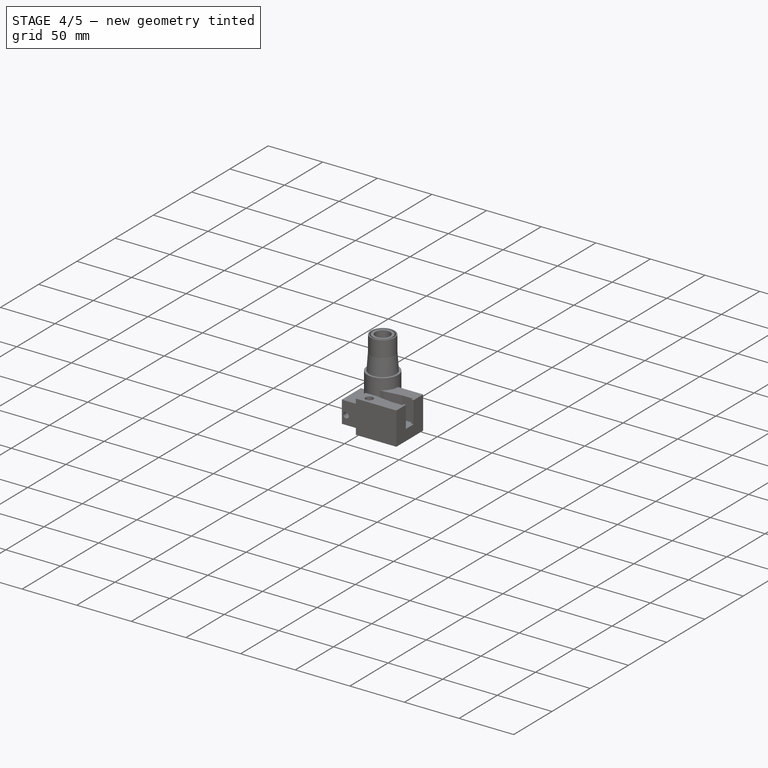
[diagram: stage 4 of 5 — iso view after this stage's code; geometry added in this stage tinted green]
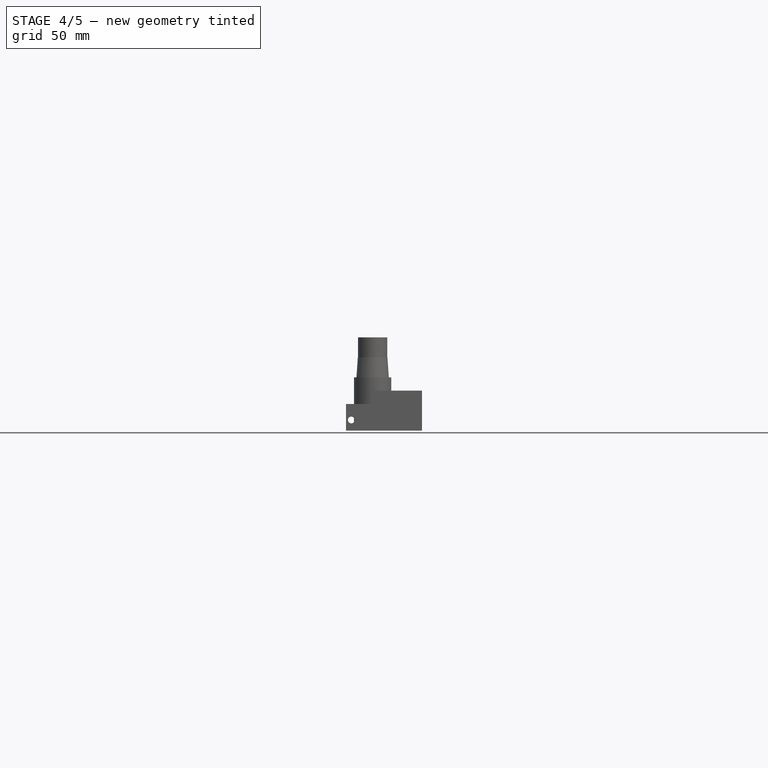
[diagram: stage 4 of 5 — front view after this stage's code; geometry added in this stage tinted green]
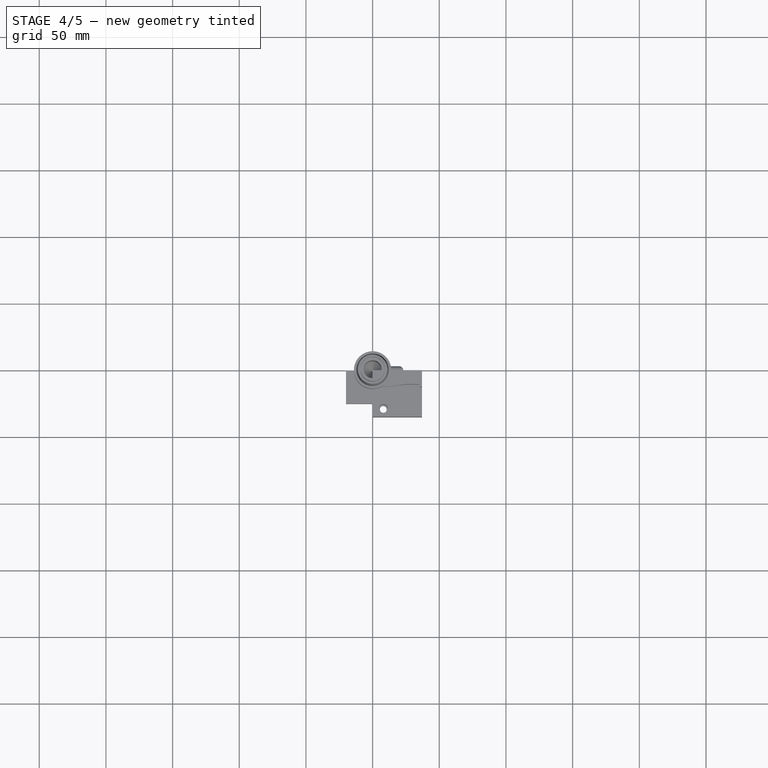
[diagram: stage 4 of 5 — top view after this stage's code; geometry added in this stage tinted green]
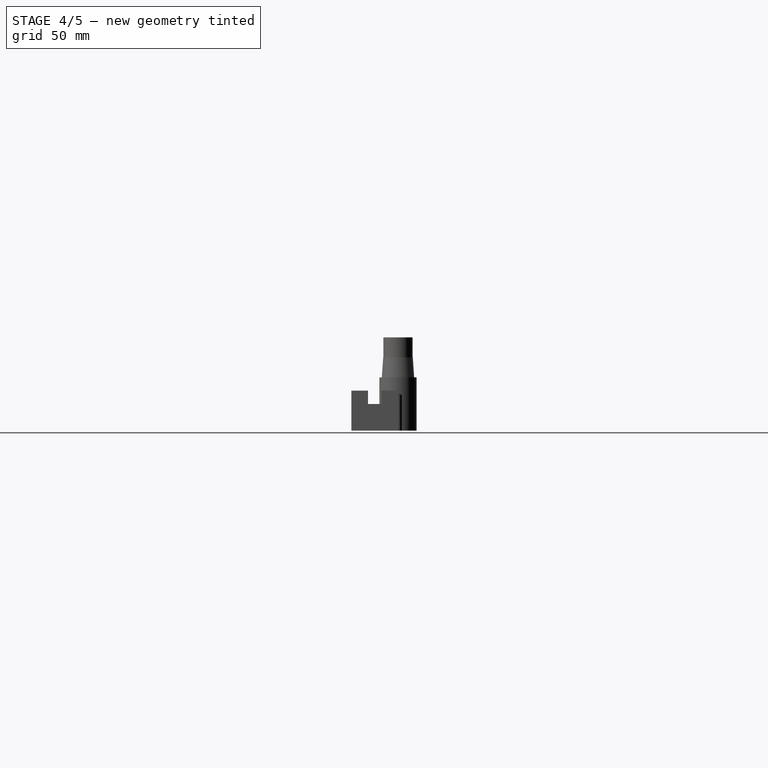
[diagram: stage 4 of 5 — right view after this stage's code; geometry added in this stage tinted green]
FEATURE [Sketcher::SketchObject] Sketch029
  FullyConstrained = true
  MapMode = 5
  Placement = pos=(23,-5e-15,5e-15) rot=(0.57735,0.57735,0.57735;2.0944rad)
  sketch-geometry (1):
    g0: Circle CenterX=0 CenterY=25 CenterZ=0 NormalX=0 NormalY=0 NormalZ=1 AngleXU=0 Radius=2
  constraints (3):
    c: PointOnObject(g0,g-2)
    c: Diameter(g0) = 4
    c: DistanceY(g-1,g0) = 25
FEATURE [Sketcher::SketchObject] Sketch037
  FullyConstrained = true
  MapMode = 5
  Support = -> [XY_Plane005]
  sketch-geometry (1):
    g0: Circle CenterX=0 CenterY=0 CenterZ=0 NormalX=0 NormalY=0 NormalZ=1 AngleXU=0 Radius=11
  constraints (2):
    c: Coincident(g0,g-1)
    c: Diameter(g0) = 22
FEATURE [PartDesign::Pad] Pad011
  Direction = (0,0,1)
  Length = 20
  Length2 = 10
  Profile = -> Sketch037
  ReferenceAxis = -> Sketch037 [N_Axis]
  Type = 0
FEATURE [Sketcher::SketchObject] Sketch038
  FullyConstrained = true
  MapMode = 5
  Placement = pos=(0,0,0) rot=(1,0,0;3.14159rad)
  Support = -> [Pad011]
  sketch-geometry (1):
    g0: Circle CenterX=0 CenterY=0 CenterZ=0 NormalX=0 NormalY=0 NormalZ=1 AngleXU=0 Radius=1
  constraints (2):
    c: Coincident(g0,g-1)
    c: Diameter(g0) = 2
FEATURE [PartDesign::Pocket] Pocket021
  BaseFeature = -> Pad011
  Direction = (0,0,1)
  Length = 20
  Length2 = 5
  Profile = -> Sketch038
  ReferenceAxis = -> Sketch038 [N_Axis]
  Type = 0
FEATURE [PartDesign::Chamfer] Chamfer
  Angle = 45
  Base = -> Pocket021 [Edge5]
  BaseFeature = -> Pocket021
  ChamferType = 1
  FlipDirection = false
  Size = 9
  Size2 = 19
  SupportTransform = false
  UseAllEdges = false
FEATURE [PartDesign::Body] Body005  label="Test_section_2mm"
  Group = -> [Sketch037,Pad011,Sketch038,Pocket021,Chamfer]
  Origin = -> Origin005
  Tip = -> Chamfer
FEATURE [Sketcher::SketchObject] Sketch042
  FullyConstrained = true
  MapMode = 5
  Support = -> [XY_Plane006]
  sketch-geometry (1):
    g0: Circle CenterX=0 CenterY=0 CenterZ=0 NormalX=0 NormalY=0 NormalZ=1 AngleXU=0 Radius=11
  constraints (2):
    c: Coincident(g0,g-1)
    c: Diameter(g0) = 22
FEATURE [PartDesign::Pad] Pad012
  Direction = (0,0,1)
  Length = 20
  Length2 = 10
  Profile = -> Sketch042
  ReferenceAxis = -> Sketch042 [N_Axis]
  Type = 0
FEATURE [Sketcher::SketchObject] Sketch043
  FullyConstrained = true
  MapMode = 5
  Placement = pos=(0,0,0) rot=(1,0,0;3.14159rad)
  Support = -> [Pad012]
  sketch-geometry (1):
    g0: Circle CenterX=0 CenterY=0 CenterZ=0 NormalX=0 NormalY=0 NormalZ=1 AngleXU=0 Radius=2
  constraints (2):
    c: Coincident(g0,g-1)
    c: Diameter(g0) = 4
FEATURE [PartDesign::Pocket] Pocket025
  BaseFeature = -> Pad012
  Direction = (0,0,1)
  Length = 20
  Length2 = 5
  Profile = -> Sketch043
  ReferenceAxis = -> Sketch043 [N_Axis]
  Type = 0
FEATURE [Sketcher::SketchObject] Sketch044
  FullyConstrained = true
  MapMode = 5
  Support = -> [XY_Plane007]
  sketch-geometry (1):
    g0: Circle CenterX=0 CenterY=0 CenterZ=0 NormalX=0 NormalY=0 NormalZ=1 AngleXU=0 Radius=11
  constraints (2):
    c: Coincident(g0,g-1)
    c: Diameter(g0) = 22
FEATURE [PartDesign::Pad] Pad013
  Direction = (0,0,1)
  Length = 20
  Length2 = 10
  Profile = -> Sketch044
  ReferenceAxis = -> Sketch044 [N_Axis]
  Type = 0
FEATURE [Sketcher::SketchObject] Sketch045
  FullyConstrained = true
  MapMode = 5
  Placement = pos=(0,0,0) rot=(1,0,0;3.14159rad)
  Support = -> [Pad013]
  sketch-geometry (1):
    g0: Circle CenterX=0 CenterY=0 CenterZ=0 NormalX=0 NormalY=0 NormalZ=1 AngleXU=0 Radius=3
  constraints (2):
    c: Coincident(g0,g-1)
    c: Diameter(g0) = 6
FEATURE [PartDesign::Pocket] Pocket026
  BaseFeature = -> Pad013
  Direction = (0,0,1)
  Length = 20
  Length2 = 5
  Profile = -> Sketch045
  ReferenceAxis = -> Sketch045 [N_Axis]
  Type = 0
FEATURE [Sketcher::SketchObject] Sketch046
  FullyConstrained = true
  MapMode = 5
  Support = -> [XY_Plane008]
  sketch-geometry (1):
    g0: Circle CenterX=0 CenterY=0 CenterZ=0 NormalX=0 NormalY=0 NormalZ=1 AngleXU=0 Radius=11
  constraints (2):
    c: Coincident(g0,g-1)
    c: Diameter(g0) = 22
FEATURE [PartDesign::Pad] Pad014
  Direction = (0,0,1)
  Length = 20
  Length2 = 10
  Profile = -> Sketch046
  ReferenceAxis = -> Sketch046 [N_Axis]
  Type = 0
FEATURE [Sketcher::SketchObject] Sketch047
  FullyConstrained = true
  MapMode = 5
  Placement = pos=(0,0,0) rot=(1,0,0;3.14159rad)
  Support = -> [Pad014]
  sketch-geometry (1):
    g0: Circle CenterX=0 CenterY=0 CenterZ=0 NormalX=0 NormalY=0 NormalZ=1 AngleXU=0 Radius=4
  constraints (2):
    c: Coincident(g0,g-1)
    c: Diameter(g0) = 8
FEATURE [PartDesign::Pocket] Pocket027
  BaseFeature = -> Pad014
  Direction = (0,0,1)
  Length = 20
  Length2 = 5
  Profile = -> Sketch047
  ReferenceAxis = -> Sketch047 [N_Axis]
  Type = 0
FEATURE [Sketcher::SketchObject] Sketch048
  FullyConstrained = true
  MapMode = 5
  Support = -> [XY_Plane009]
  sketch-geometry (1):
    g0: Circle CenterX=0 CenterY=0 CenterZ=0 NormalX=0 NormalY=0 NormalZ=1 AngleXU=0 Radius=11
  constraints (2):
    c: Coincident(g0,g-1)
    c: Diameter(g0) = 22
FEATURE [PartDesign::Pad] Pad015
  Direction = (0,0,1)
  Length = 20
  Length2 = 10
  Profile = -> Sketch048
  ReferenceAxis = -> Sketch048 [N_Axis]
  Type = 0
FEATURE [Sketcher::SketchObject] Sketch049
  FullyConstrained = true
  MapMode = 5
  Placement = pos=(0,0,0) rot=(1,0,0;3.14159rad)
  Support = -> [Pad015]
  sketch-geometry (1):
    g0: Circle CenterX=0 CenterY=0 CenterZ=0 NormalX=0 NormalY=0 NormalZ=1 AngleXU=0 Radius=5
  constraints (2):
    c: Coincident(g0,g-1)
    c: Diameter(g0) = 10
FEATURE [PartDesign::Pocket] Pocket028
  BaseFeature = -> Pad015
  Direction = (0,0,1)
  Length = 20
  Length2 = 5
  Profile = -> Sketch049
  ReferenceAxis = -> Sketch049 [N_Axis]
  Type = 0
FEATURE [PartDesign::Chamfer] Chamfer005
  Angle = 45
  Base = -> Pocket025 [Edge5]
  BaseFeature = -> Pocket025
  ChamferType = 1
  FlipDirection = false
  Size = 8
  Size2 = 19
  SupportTransform = false
  UseAllEdges = false
FEATURE [PartDesign::Body] Body006  label="Test_section_4mm"
  Group = -> [Sketch042,Pad012,Sketch043,Pocket025,Chamfer005]
  Origin = -> Origin006
  Placement = pos=(24,0,0) rot=(0,0,1;0rad)
  Tip = -> Chamfer005
FEATURE [PartDesign::Chamfer] Chamfer006
  Angle = 45
  Base = -> Pocket026 [Edge5]
  BaseFeature = -> Pocket026
  ChamferType = 1
  FlipDirection = false
  Size = 7
  Size2 = 19
  SupportTransform = false
  UseAllEdges = false
FEATURE [PartDesign::Body] Body007  label="Test_section_6mm"
  Group = -> [Sketch044,Pad013,Sketch045,Pocket026,Chamfer006]
  Origin = -> Origin007
  Placement = pos=(0,28,0) rot=(0,0,1;0rad)
  Tip = -> Chamfer006
FEATURE [PartDesign::Chamfer] Chamfer007
  Angle = 45
  Base = -> Pocket027 [Edge5]
  BaseFeature = -> Pocket027
  ChamferType = 1
  FlipDirection = false
  Size = 6
  Size2 = 19
  SupportTransform = false
  UseAllEdges = false
FEATURE [PartDesign::Body] Body008  label="Test_section_8mm"
  Group = -> [Sketch046,Pad014,Sketch047,Pocket027,Chamfer007]
  Origin = -> Origin008
  Placement = pos=(-26,0,0) rot=(0,0,1;0rad)
  Tip = -> Chamfer007
FEATURE [PartDesign::Chamfer] Chamfer008
  Angle = 45
  Base = -> Pocket028 [Edge5]
  BaseFeature = -> Pocket028
  ChamferType = 1
  FlipDirection = false
  Size = 5
  Size2 = 19
  SupportTransform = false
  UseAllEdges = false
FEATURE [Sketcher::SketchObject] Sketch058
  FullyConstrained = true
  MapMode = 5
  Support = -> [XY_Plane014]
  sketch-geometry (1):
    g0: Circle CenterX=0 CenterY=0 CenterZ=0 NormalX=0 NormalY=0 NormalZ=1 AngleXU=0 Radius=11
  constraints (2):
    c: Coincident(g0,g-1)
    c: Diameter(g0) = 22
FEATURE [PartDesign::Pad] Pad020
  Direction = (0,0,1)
  Length = 20
  Length2 = 10
  Profile = -> Sketch058
  ReferenceAxis = -> Sketch058 [N_Axis]
  Type = 0
FEATURE [Sketcher::SketchObject] Sketch059
  FullyConstrained = true
  MapMode = 5
  Placement = pos=(0,0,0) rot=(1,0,0;3.14159rad)
  Support = -> [Pad020]
  sketch-geometry (1):
    g0: Circle CenterX=0 CenterY=0 CenterZ=0 NormalX=0 NormalY=0 NormalZ=1 AngleXU=0 Radius=10
  constraints (2):
    c: Coincident(g0,g-1)
    c: Diameter(g0) = 20
FEATURE [PartDesign::Pocket] Pocket033
  BaseFeature = -> Pad020
  Direction = (0,0,1)
  Length = 20
  Length2 = 5
  Profile = -> Sketch059
  ReferenceAxis = -> Sketch059 [N_Axis]
  Type = 0
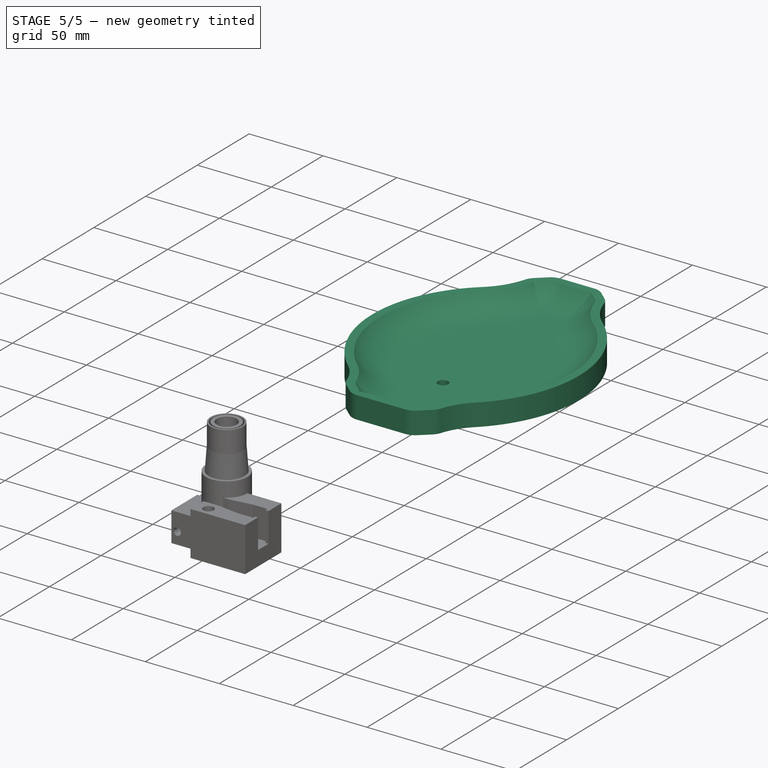
[diagram: stage 5 of 5 — iso view after this stage's code; geometry added in this stage tinted green]
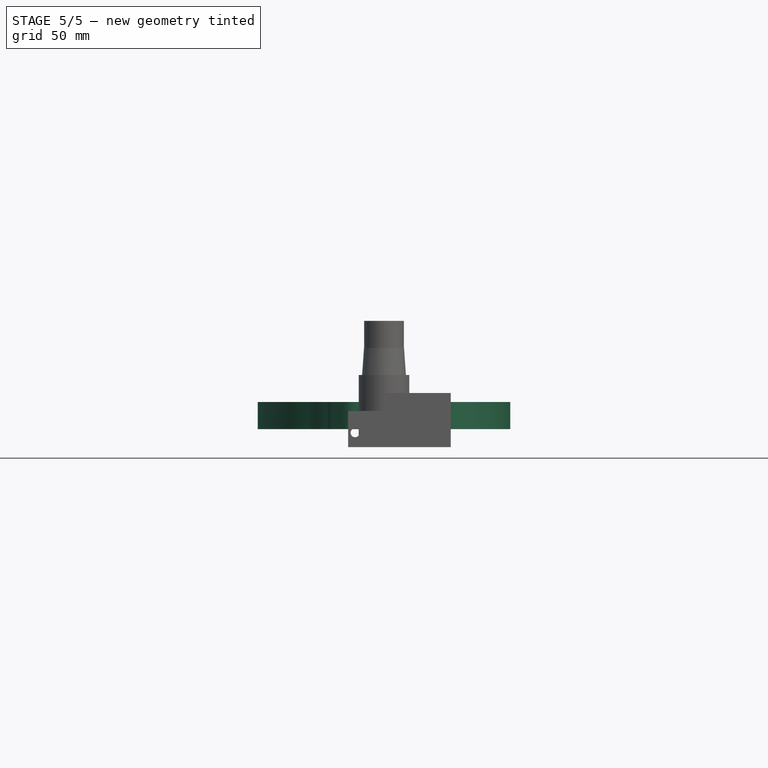
[diagram: stage 5 of 5 — front view after this stage's code; geometry added in this stage tinted green]
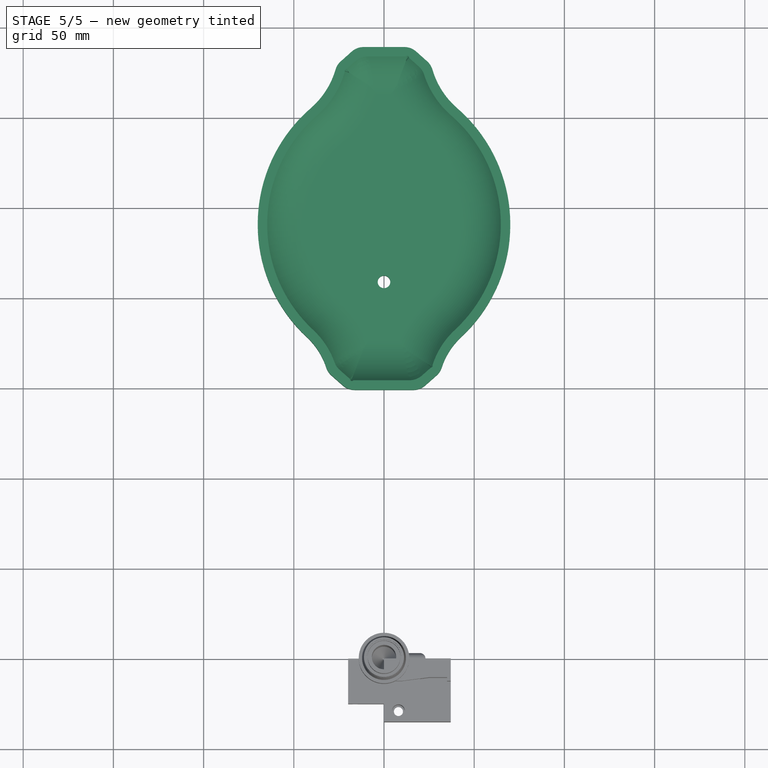
[diagram: stage 5 of 5 — top view after this stage's code; geometry added in this stage tinted green]
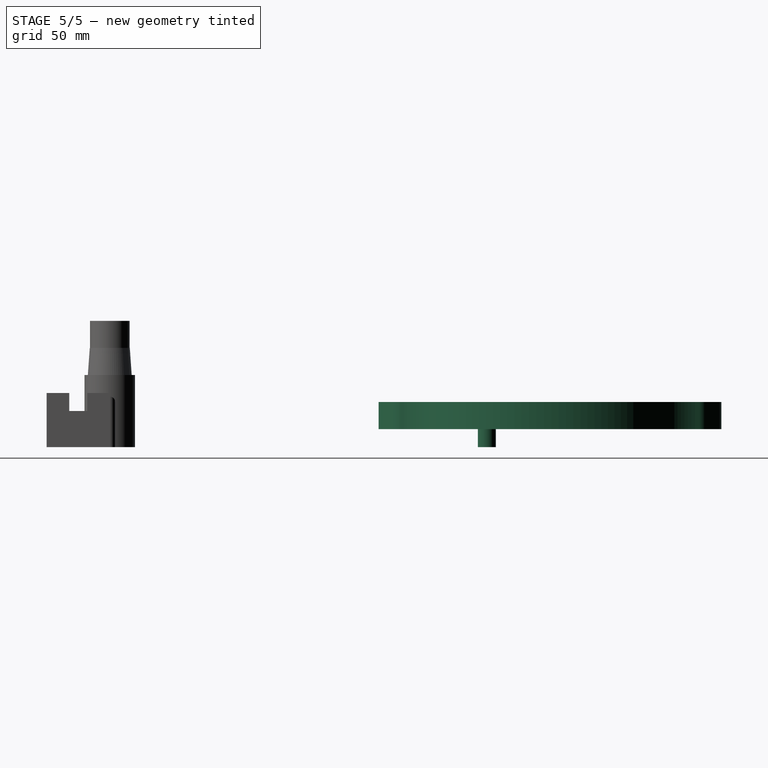
[diagram: stage 5 of 5 — right view after this stage's code; geometry added in this stage tinted green]
FEATURE [Sketcher::SketchObject] Sketch003
  FullyConstrained = true
  MapMode = 5
  Support = -> [XY_Plane001]
  sketch-geometry (1):
    g0: Circle CenterX=0 CenterY=0 CenterZ=0 NormalX=0 NormalY=0 NormalZ=1 AngleXU=0 Radius=5
  constraints (2):
    c: Coincident(g0,g-1)
    c: Diameter(g0) = 10
FEATURE [PartDesign::Pad] Pad001
  Direction = (0,0,1)
  Length = 10
  Length2 = 10
  Profile = -> Sketch003
  ReferenceAxis = -> Sketch003 [N_Axis]
  Type = 0
FEATURE [Sketcher::SketchObject] Sketch005
  FullyConstrained = true
  MapMode = 5
  Placement = pos=(0,0,10) rot=(0,0,1;0rad)
  sketch-geometry (4):
    g0: LineSegment StartX=-70 StartY=-60 StartZ=0 EndX=70 EndY=-60 EndZ=0
    g1: LineSegment StartX=70 StartY=-60 StartZ=0 EndX=70 EndY=130 EndZ=0
    g2: LineSegment StartX=70 StartY=130 StartZ=0 EndX=-70 EndY=130 EndZ=0
    g3: LineSegment StartX=-70 StartY=130 StartZ=0 EndX=-70 EndY=-60 EndZ=0
  constraints (11):
    c: Coincident(g0,g1)
    c: Coincident(g1,g2)
    c: Coincident(g2,g3)
    c: Coincident(g3,g0)
    c: Horizontal(g2)
    c: Vertical(g1)
    c: Vertical(g3)
    c: DistanceX(g0,g0) = 140
    c: Symmetric(g0,g0,g-2)
    c: DistanceY(g0,g-1) = 60
    c: DistanceY(g-1,g1) = 130
FEATURE [PartDesign::Pad] Pad002
  BaseFeature = -> Pad001
  Direction = (0,0,1)
  Length = 15
  Length2 = 10
  Profile = -> Sketch005
  ReferenceAxis = -> Sketch005 [N_Axis]
  Type = 0
FEATURE [Sketcher::SketchObject] Sketch006
  FullyConstrained = false
  MapMode = 5
  Placement = pos=(0,0,25) rot=(0,0,1;0rad)
  Support = -> [Pad002]
  sketch-geometry (12):
    g0: ArcOfCircle CenterX=70.0469 CenterY=130.107 CenterZ=0 NormalX=0 NormalY=0 NormalZ=1 AngleXU=0 Radius=45.0034 StartAngle=3.14159 EndAngle=4.71239
    g1: LineSegment StartX=70.0469 StartY=130.107 StartZ=0 EndX=70.0469 EndY=85.1033 EndZ=0
    g2: LineSegment StartX=70.0469 StartY=130.107 StartZ=0 EndX=25.0436 EndY=130.107 EndZ=0
    g3: ArcOfCircle CenterX=-70.1177 CenterY=130.12 CenterZ=0 NormalX=0 NormalY=0 NormalZ=1 AngleXU=0 Radius=45.0513 StartAngle=4.71239 EndAngle=6.28319
    g4: LineSegment StartX=-70.1177 StartY=130.12 StartZ=0 EndX=-70.1177 EndY=85.0684 EndZ=0
    g5: LineSegment StartX=-70.1177 StartY=130.12 StartZ=0 EndX=-25.0664 EndY=130.12 EndZ=0
    g6: ArcOfCircle CenterX=-70.002 CenterY=-60.0243 CenterZ=0 NormalX=0 NormalY=0 NormalZ=1 AngleXU=0 Radius=39.9674 StartAngle=0 EndAngle=1.59896
    g7: LineSegment StartX=-70.002 StartY=-60.0243 StartZ=0 EndX=-71.1274 EndY=-20.0728 EndZ=0
    g8: LineSegment StartX=-70.002 StartY=-60.0243 StartZ=0 EndX=-30.0346 EndY=-60.0243 EndZ=0
    g9: ArcOfCircle CenterX=70.0054 CenterY=-60.0024 CenterZ=0 NormalX=0 NormalY=0 NormalZ=1 AngleXU=0 Radius=39.9742 StartAngle=1.5708 EndAngle=3.14159
    g10: LineSegment StartX=30.0312 StartY=-60.0024 StartZ=0 EndX=70.0054 EndY=-60.0024 EndZ=0
    g11: LineSegment StartX=70.0054 StartY=-60.0024 StartZ=0 EndX=70.0054 EndY=-20.0281 EndZ=0
  constraints (23):
    c: Coincident(g1,g0)
    c: Coincident(g1,g0)
    c: Vertical(g1)
    c: Coincident(g2,g0)
    c: Coincident(g2,g0)
    c: Horizontal(g2)
    c: Coincident(g4,g3)
    c: Coincident(g4,g3)
    c: Vertical(g4)
    c: Coincident(g5,g3)
    c: Coincident(g5,g3)
    c: Horizontal(g5)
    c: Coincident(g7,g6)
    c: Coincident(g7,g6)
    c: Coincident(g8,g6)
    c: Coincident(g8,g6)
    c: Horizontal(g8)
    c: Coincident(g10,g9)
    c: Coincident(g10,g9)
    c: Horizontal(g10)
    c: Coincident(g11,g9)
    c: Coincident(g11,g9)
    c: Vertical(g11)
FEATURE [PartDesign::Pocket] Pocket003
  BaseFeature = -> Pad002
  Direction = (0,0,-1)
  Length = 15
  Length2 = 5
  Profile = -> Sketch006
  ReferenceAxis = -> Sketch006 [N_Axis]
  Type = 0
FEATURE [PartDesign::Fillet] Fillet001
  Base = -> Pocket003 [Edge21,Edge25,Edge22,Edge14]
  BaseFeature = -> Pocket003
  Radius = 85
  SupportTransform = false
  UseAllEdges = false
FEATURE [Sketcher::SketchObject] Sketch007
  FullyConstrained = true
  MapMode = 5
  Placement = pos=(0,0,0) rot=(1,0,0;3.14159rad)
  sketch-geometry (1):
    g0: Circle CenterX=0 CenterY=0 CenterZ=0 NormalX=0 NormalY=0 NormalZ=1 AngleXU=0 Radius=3.5
  constraints (2):
    c: Coincident(g0,g-1)
    c: Diameter(g0) = 7
FEATURE [PartDesign::Pocket] Pocket004
  BaseFeature = -> Fillet001
  Direction = (0,0,1)
  Length = 40
  Length2 = 5
  Profile = -> Sketch007
  ReferenceAxis = -> Sketch007 [N_Axis]
  Type = 0
FEATURE [PartDesign::Chamfer] Chamfer002
  Angle = 45
  Base = -> Pocket004 [Edge16,Edge19,Edge34,Edge30]
  BaseFeature = -> Pocket004
  ChamferType = 0
  FlipDirection = false
  Size = 10
  Size2 = 1
  SupportTransform = false
  UseAllEdges = false
FEATURE [PartDesign::Fillet] Fillet002
  Base = -> Chamfer002 [Edge39,Edge36,Edge43,Edge47]
  BaseFeature = -> Chamfer002
  Radius = 10
  SupportTransform = false
  UseAllEdges = false
FEATURE [PartDesign::Fillet] Fillet003
  Base = -> Fillet002 [Edge40,Edge43,Edge51,Edge47]
  BaseFeature = -> Fillet002
  Radius = 10
  SupportTransform = false
  UseAllEdges = false
FEATURE [PartDesign::Body] Body001  label="Masque"
  Group = -> [Sketch003,Pad001,Sketch005,Pad002,Sketch006,Pocket003,Fillet001,Sketch007,Pocket004,Chamfer002,Fillet002,Fillet003]
  Origin = -> Origin001
  Tip = -> Fillet003
FEATURE [Sketcher::SketchObject] Sketch008
  FullyConstrained = true
  MapMode = 5
  Support = -> [XY_Plane003]
  sketch-geometry (1):
    g0: Circle CenterX=0 CenterY=0 CenterZ=0 NormalX=0 NormalY=0 NormalZ=1 AngleXU=0 Radius=5
  constraints (2):
    c: Coincident(g0,g-1)
    c: Diameter(g0) = 10
FEATURE [PartDesign::Pad] Pad003
  Direction = (0,0,1)
  Length = 10
  Length2 = 10
  Profile = -> Sketch008
  ReferenceAxis = -> Sketch008 [N_Axis]
  Type = 0
FEATURE [Sketcher::SketchObject] Sketch009
  FullyConstrained = true
  MapMode = 5
  Placement = pos=(0,0,10) rot=(0,0,1;0rad)
  sketch-geometry (4):
    g0: LineSegment StartX=-70 StartY=-60 StartZ=0 EndX=70 EndY=-60 EndZ=0
    g1: LineSegment StartX=70 StartY=-60 StartZ=0 EndX=70 EndY=130 EndZ=0
    g2: LineSegment StartX=70 StartY=130 StartZ=0 EndX=-70 EndY=130 EndZ=0
    g3: LineSegment StartX=-70 StartY=130 StartZ=0 EndX=-70 EndY=-60 EndZ=0
  constraints (11):
    c: Coincident(g0,g1)
    c: Coincident(g1,g2)
    c: Coincident(g2,g3)
    c: Coincident(g3,g0)
    c: Horizontal(g2)
    c: Vertical(g1)
    c: Vertical(g3)
    c: DistanceX(g0,g0) = 140
    c: Symmetric(g0,g0,g-2)
    c: DistanceY(g0,g-1) = 60
    c: DistanceY(g-1,g1) = 130
FEATURE [PartDesign::Pad] Pad004
  BaseFeature = -> Pad003
  Direction = (0,0,1)
  Length = 50
  Length2 = 10
  Profile = -> Sketch009
  ReferenceAxis = -> Sketch009 [N_Axis]
  Type = 0
FEATURE [Sketcher::SketchObject] Sketch010
  FullyConstrained = false
  MapMode = 5
  Placement = pos=(0,0,60) rot=(0,0,1;0rad)
  Support = -> [Pad004]
  sketch-geometry (12):
    g0: ArcOfCircle CenterX=70.0469 CenterY=130.107 CenterZ=0 NormalX=0 NormalY=0 NormalZ=1 AngleXU=0 Radius=45.0034 StartAngle=3.14159 EndAngle=4.71239
    g1: LineSegment StartX=70.0469 StartY=130.107 StartZ=0 EndX=70.0469 EndY=85.1033 EndZ=0
    g2: LineSegment StartX=70.0469 StartY=130.107 StartZ=0 EndX=25.0436 EndY=130.107 EndZ=0
    g3: ArcOfCircle CenterX=-70.1177 CenterY=130.12 CenterZ=0 NormalX=0 NormalY=0 NormalZ=1 AngleXU=0 Radius=45.0513 StartAngle=4.71239 EndAngle=6.28319
    g4: LineSegment StartX=-70.1177 StartY=130.12 StartZ=0 EndX=-70.1177 EndY=85.0684 EndZ=0
    g5: LineSegment StartX=-70.1177 StartY=130.12 StartZ=0 EndX=-25.0664 EndY=130.12 EndZ=0
    g6: ArcOfCircle CenterX=-70.002 CenterY=-60.0243 CenterZ=0 NormalX=0 NormalY=0 NormalZ=1 AngleXU=0 Radius=39.9674 StartAngle=0 EndAngle=1.59896
    g7: LineSegment StartX=-70.002 StartY=-60.0243 StartZ=0 EndX=-71.1274 EndY=-20.0728 EndZ=0
    g8: LineSegment StartX=-70.002 StartY=-60.0243 StartZ=0 EndX=-30.0346 EndY=-60.0243 EndZ=0
    g9: ArcOfCircle CenterX=70.0054 CenterY=-60.0024 CenterZ=0 NormalX=0 NormalY=0 NormalZ=1 AngleXU=0 Radius=39.9742 StartAngle=1.5708 EndAngle=3.14159
    g10: LineSegment StartX=30.0312 StartY=-60.0024 StartZ=0 EndX=70.0054 EndY=-60.0024 EndZ=0
    g11: LineSegment StartX=70.0054 StartY=-60.0024 StartZ=0 EndX=70.0054 EndY=-20.0281 EndZ=0
  constraints (23):
    c: Coincident(g1,g0)
    c: Coincident(g1,g0)
    c: Vertical(g1)
    c: Coincident(g2,g0)
    c: Coincident(g2,g0)
    c: Horizontal(g2)
    c: Coincident(g4,g3)
    c: Coincident(g4,g3)
    c: Vertical(g4)
    c: Coincident(g5,g3)
    c: Coincident(g5,g3)
    c: Horizontal(g5)
    c: Coincident(g7,g6)
    c: Coincident(g7,g6)
    c: Coincident(g8,g6)
    c: Coincident(g8,g6)
    c: Horizontal(g8)
    c: Coincident(g10,g9)
    c: Coincident(g10,g9)
    c: Horizontal(g10)
    c: Coincident(g11,g9)
    c: Coincident(g11,g9)
    c: Vertical(g11)
FEATURE [PartDesign::Pocket] Pocket005
  BaseFeature = -> Pad004
  Direction = (0,0,-1)
  Length = 51
  Length2 = 5
  Profile = -> Sketch010
  ReferenceAxis = -> Sketch010 [N_Axis]
  Type = 0
FEATURE [PartDesign::Fillet] Fillet004
  Base = -> Pocket005 [Edge21,Edge25,Edge22,Edge14]
  BaseFeature = -> Pocket005
  Radius = 85
  SupportTransform = false
  UseAllEdges = false
FEATURE [Sketcher::SketchObject] Sketch011
  FullyConstrained = true
  MapMode = 5
  Placement = pos=(0,0,0) rot=(1,0,0;3.14159rad)
  sketch-geometry (1):
    g0: Circle CenterX=0 CenterY=0 CenterZ=0 NormalX=0 NormalY=0 NormalZ=1 AngleXU=0 Radius=3.5
  constraints (2):
    c: Coincident(g0,g-1)
    c: Diameter(g0) = 7
FEATURE [PartDesign::Pocket] Pocket006
  BaseFeature = -> Fillet004
  Direction = (0,0,1)
  Length = 40
  Length2 = 5
  Profile = -> Sketch011
  ReferenceAxis = -> Sketch011 [N_Axis]
  Type = 0
FEATURE [PartDesign::Chamfer] Chamfer003
  Angle = 45
  Base = -> Pocket006 [Edge16,Edge19,Edge34,Edge30]
  BaseFeature = -> Pocket006
  ChamferType = 0
  FlipDirection = false
  Size = 10
  Size2 = 1
  SupportTransform = false
  UseAllEdges = false
FEATURE [PartDesign::Fillet] Fillet005
  Base = -> Chamfer003 [Edge39,Edge36,Edge43,Edge47]
  BaseFeature = -> Chamfer003
  Radius = 10
  SupportTransform = false
  UseAllEdges = false
FEATURE [PartDesign::Fillet] Fillet006
  Base = -> Fillet005 [Edge40,Edge43,Edge51,Edge47]
  BaseFeature = -> Fillet005
  Radius = 10
  SupportTransform = false
  UseAllEdges = false
FEATURE [PartDesign::Fillet] Fillet007
  Base = -> Fillet006 [Face27]
  BaseFeature = -> Fillet006
  Radius = 27
  SupportTransform = false
  UseAllEdges = false
FEATURE [PartDesign::Body] Body003  label="Masque001"
  Group = -> [Sketch008,Pad003,Sketch009,Pad004,Sketch010,Pocket005,Fillet004,Sketch011,Pocket006,Chamfer003,Fillet005,Fillet006,Fillet007]
  Origin = -> Origin003
  Placement = pos=(4e-15,0,74) rot=(0,1,0;3.14159rad)
  Tip = -> Fillet007
FEATURE [Part::Cut] Cut  label="Masque002"
  Base = -> Body001
  Placement = pos=(0,209,0) rot=(0,0,1;0rad)
  Tool = -> Body003
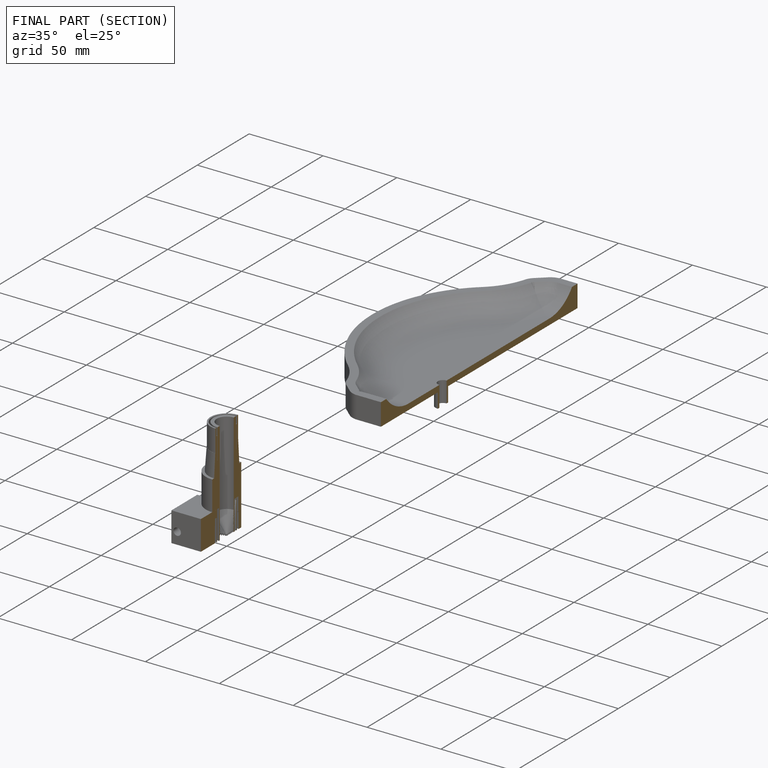
[diagram: finished part — half-section view (interior)]
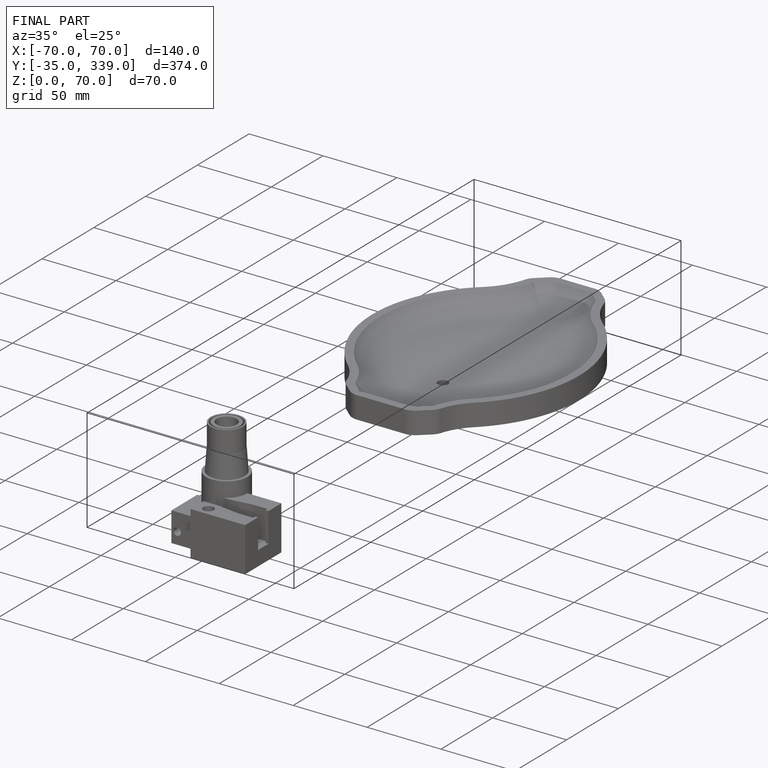
[diagram: finished part — iso view with bounding-box wireframe]
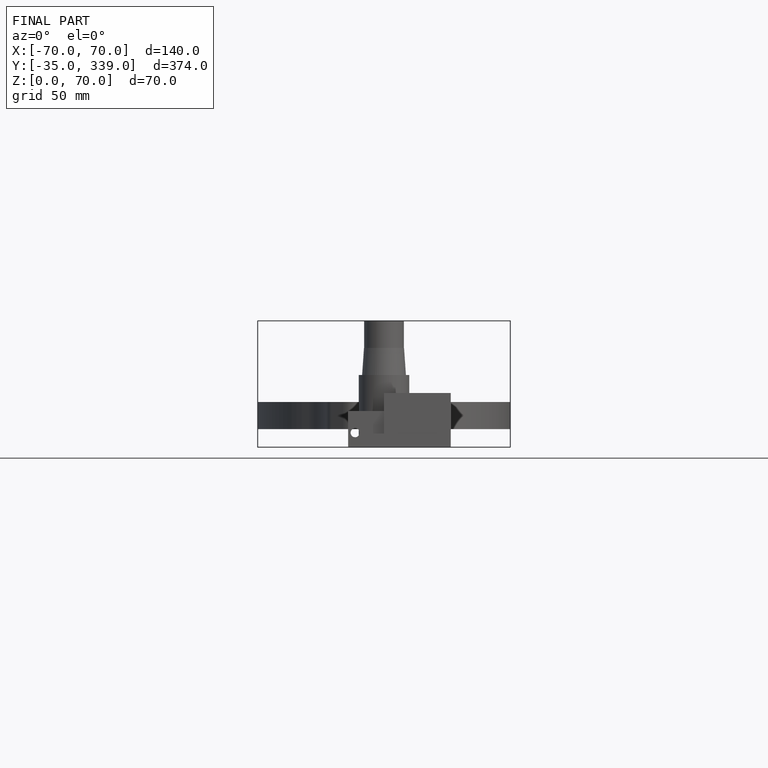
[diagram: finished part — front view with bounding-box wireframe]
